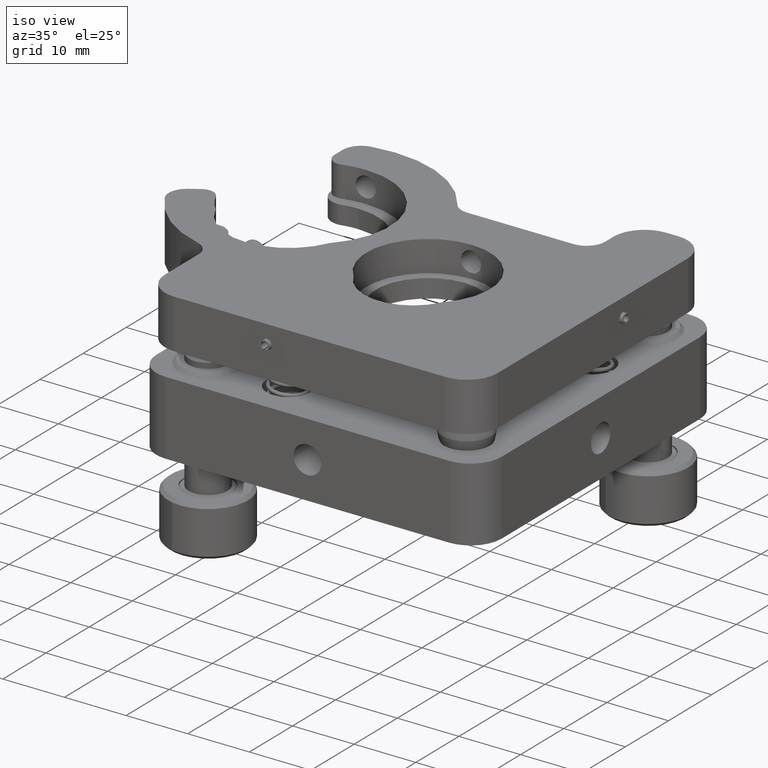
[diagram: clean part render]
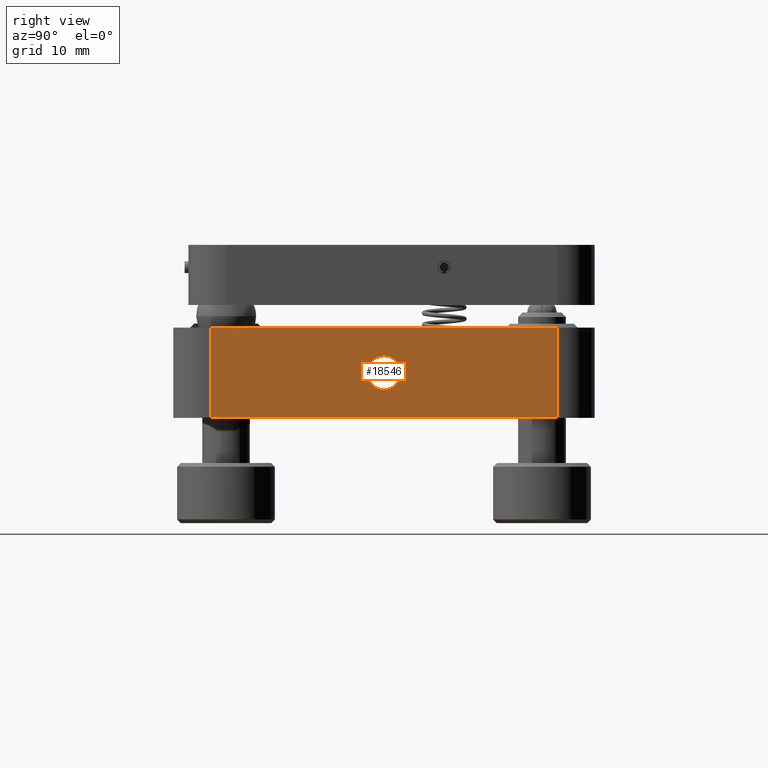
[diagram: tour spotlight — one face highlighted and labeled with its STEP entity id]
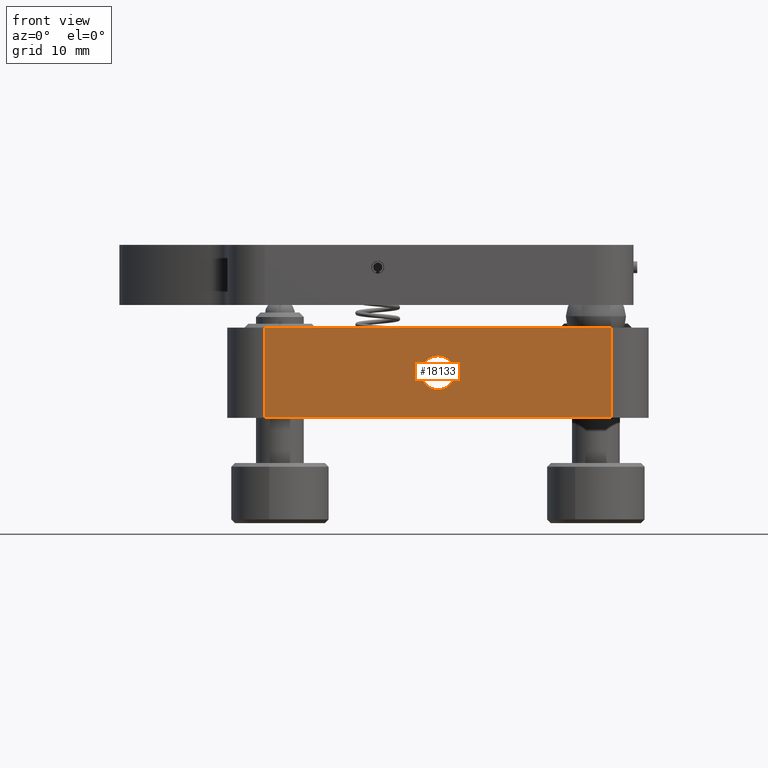
[diagram: tour spotlight — one face highlighted and labeled with its STEP entity id]
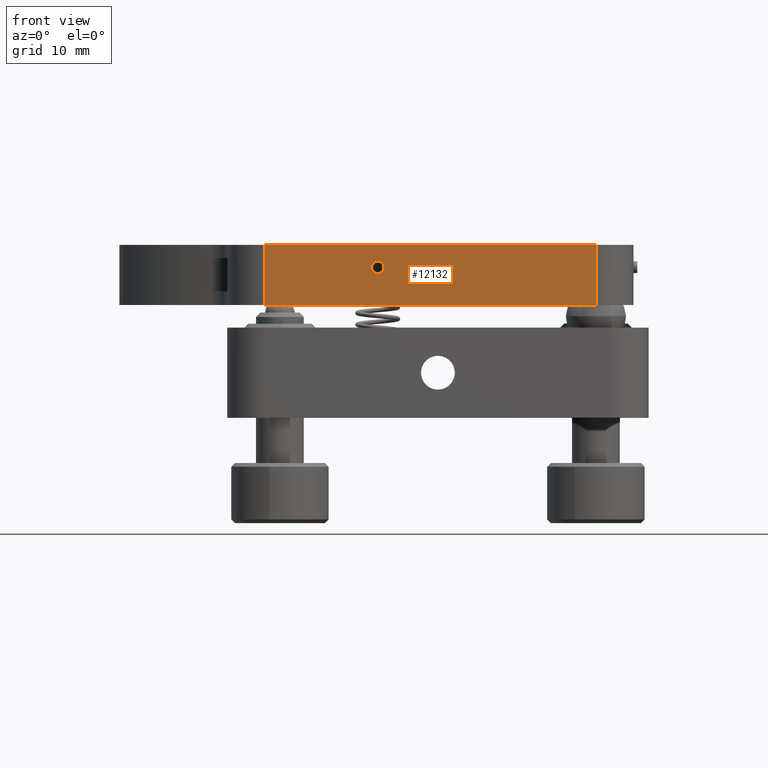
[diagram: tour spotlight — one face highlighted and labeled with its STEP entity id]
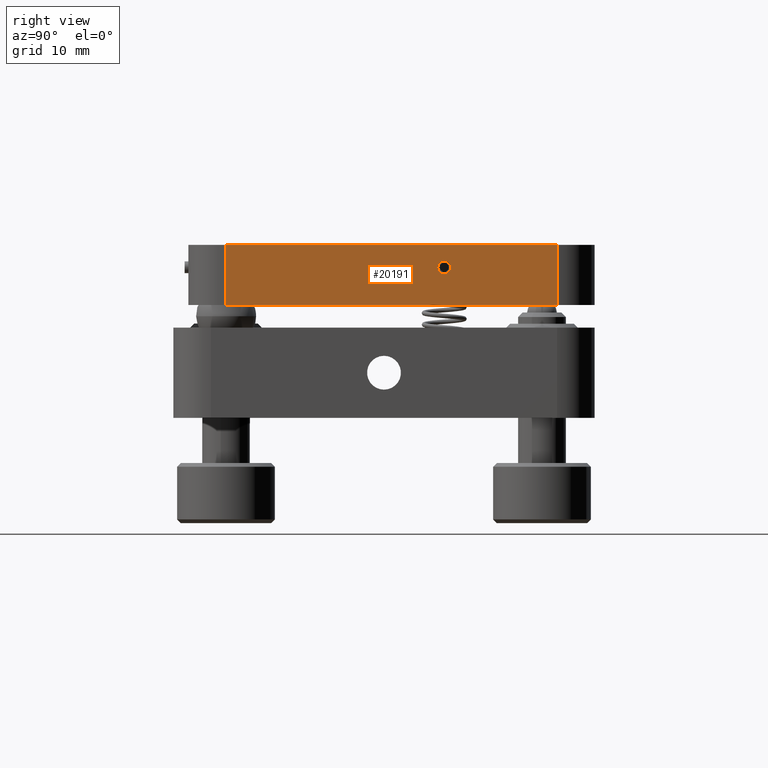
[diagram: tour spotlight — one face highlighted and labeled with its STEP entity id]
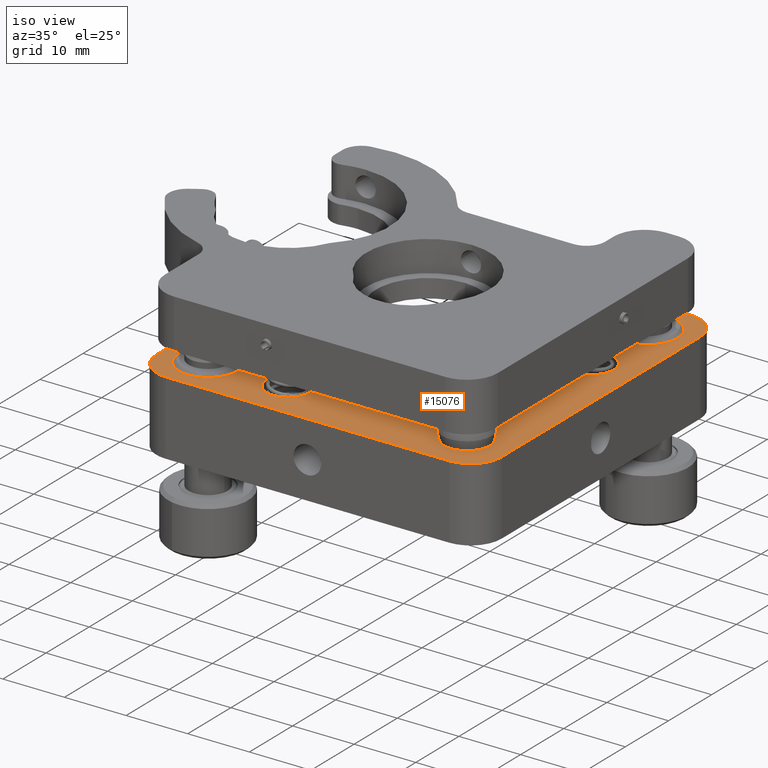
[diagram: tour spotlight — one face highlighted and labeled with its STEP entity id]
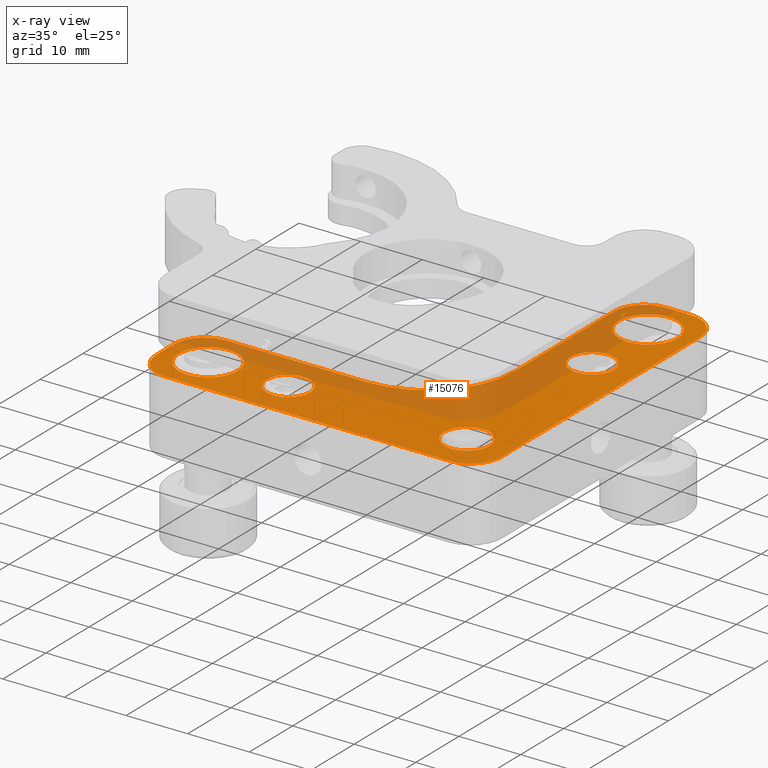
[diagram: x-ray of the same camera — body ghosted, this tour face saturated]
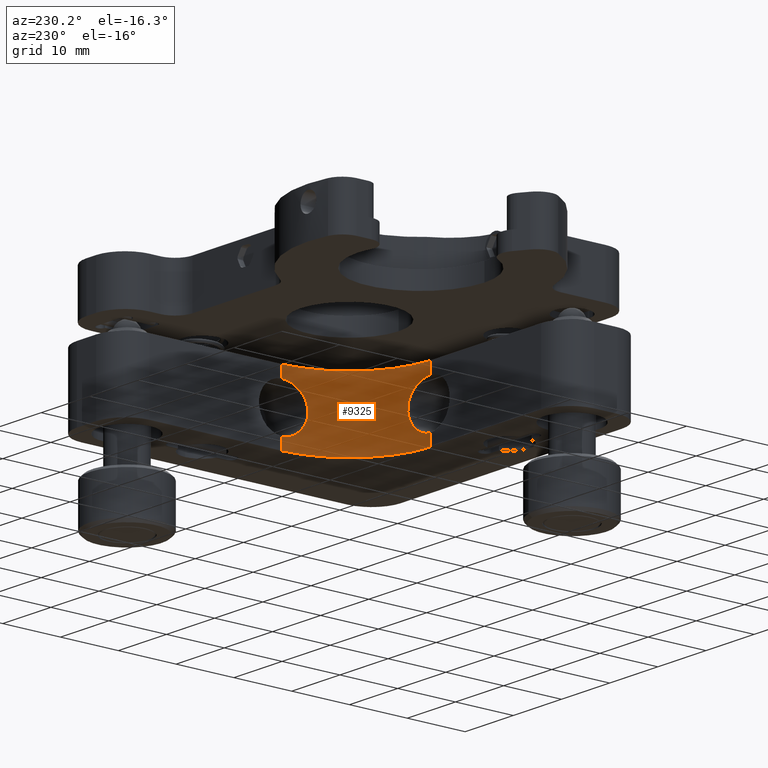
[diagram: tour spotlight — one face highlighted and labeled with its STEP entity id]
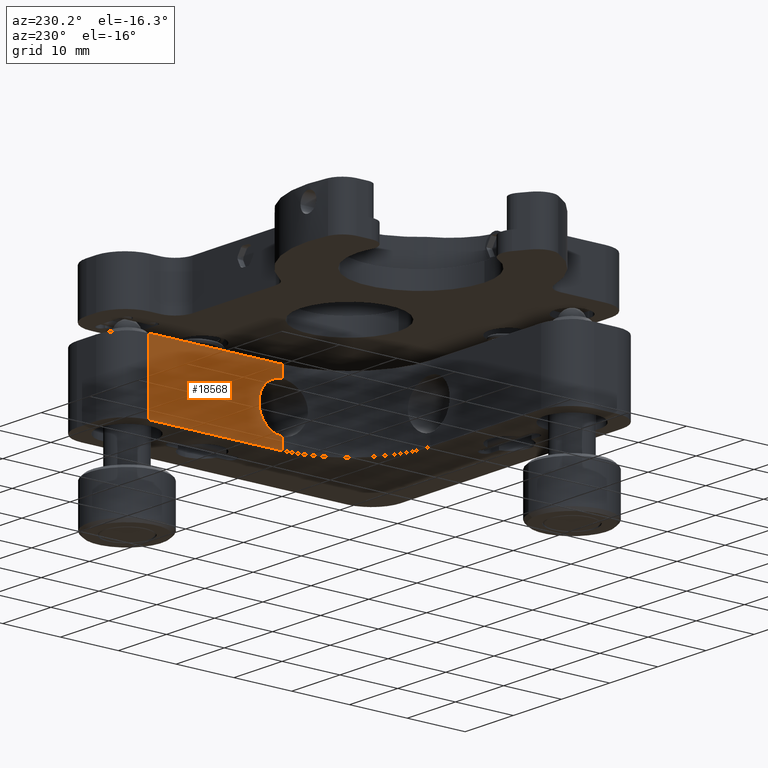
[diagram: tour spotlight — one face highlighted and labeled with its STEP entity id]
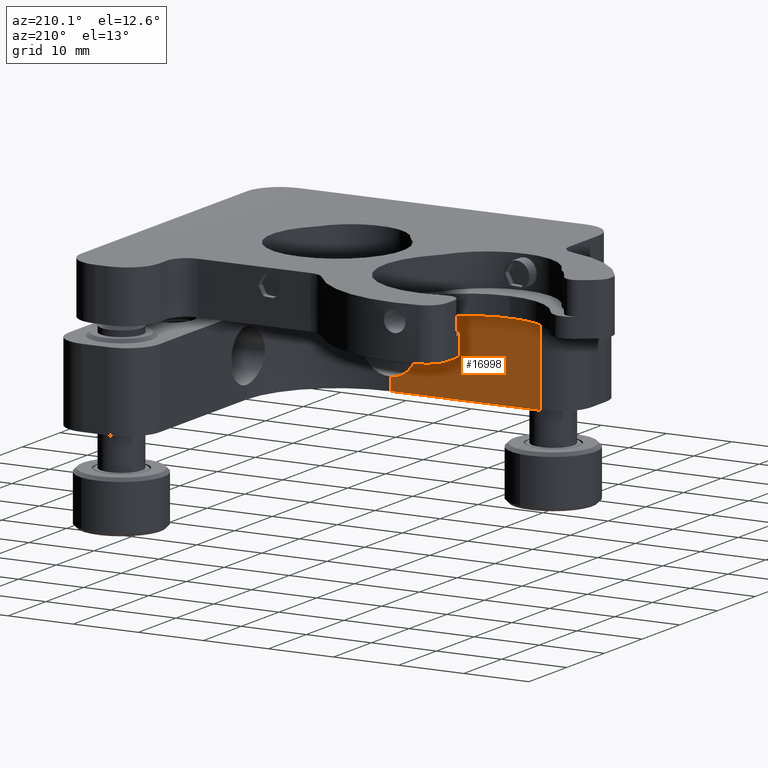
[diagram: tour spotlight — one face highlighted and labeled with its STEP entity id]
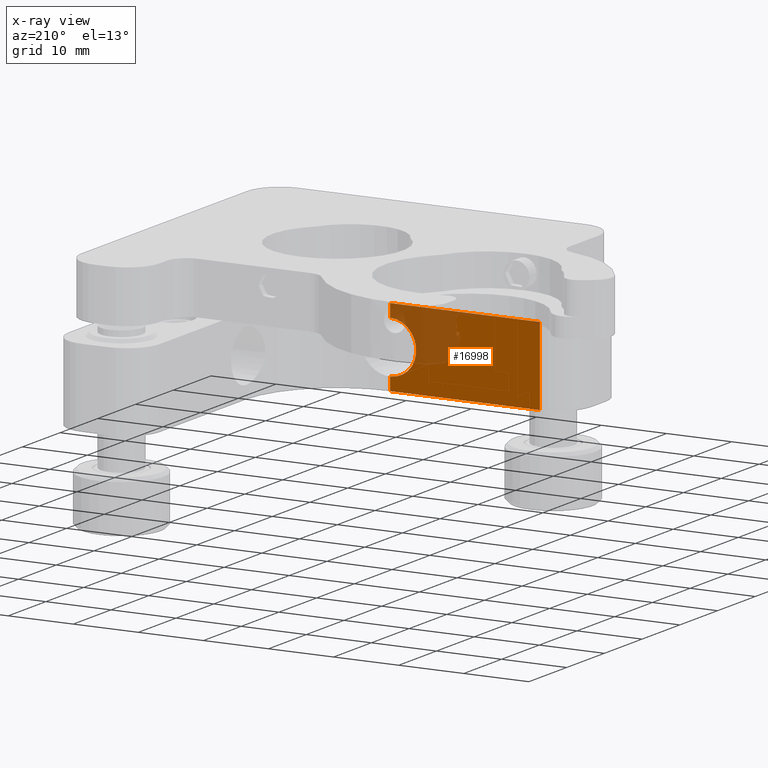
[diagram: x-ray of the same camera — body ghosted, this tour face saturated]
A machine part: a face-by-face anatomy tour. The part has 600 B-rep faces; the first image is the clean iso view, then the 8 largest visible faces are spotlighted one at a time (largest first), each with its STEP entity span.

Face 1 — right view, entity #18546. In plain terms, the highlighted planar face has unit normal (1, 0, -0).
Definition (entity closure, byte-faithful):
#39 = DIRECTION ( 'NONE',  ( 1.000000000000000000, 1.508455196501573400E-016, -0.0000000000000000000 ) ) ;
#615 = CARTESIAN_POINT ( 'NONE',  ( 27.99999999999967700, 23.00000000000001100, -3.000000000000070200 ) ) ;
#632 = DIRECTION ( 'NONE',  ( 0.0000000000000000000, 0.0000000000000000000, 1.000000000000000000 ) ) ;
#1010 = DIRECTION ( 'NONE',  ( -1.508455196501573600E-016, 1.000000000000000000, -0.0000000000000000000 ) ) ;
#1692 = EDGE_CURVE ( 'NONE', #6099, #15021, #3550, .T. ) ;
#1874 = LINE ( 'NONE', #9945, #5779 ) ;
#2280 = DIRECTION ( 'NONE',  ( 0.0000000000000000000, 0.0000000000000000000, 1.000000000000000000 ) ) ;
#2324 = ORIENTED_EDGE ( 'NONE', *, *, #18818, .T. ) ;
#2500 = VERTEX_POINT ( 'NONE', #13520 ) ;
#2515 = AXIS2_PLACEMENT_3D ( 'NONE', #3168, #39, #6278 ) ;
#2725 = CARTESIAN_POINT ( 'NONE',  ( 27.99999999999968000, 4.022839558589899200E-014, -6.750000000000071900 ) ) ;
#2954 = VERTEX_POINT ( 'NONE', #6585 ) ;
#3039 = EDGE_LOOP ( 'NONE', ( #17148, #6243, #5792, #2324 ) ) ;
#3168 = CARTESIAN_POINT ( 'NONE',  ( 27.99999999999967700, 23.00000000000000700, -15.00000000000007100 ) ) ;
#3550 = LINE ( 'NONE', #6675, #5742 ) ;
#3971 = DIRECTION ( 'NONE',  ( 0.0000000000000000000, 1.000000000000000000, 0.0000000000000000000 ) ) ;
#4229 = DIRECTION ( 'NONE',  ( 1.000000000000000000, 1.508455196501573400E-016, -0.0000000000000000000 ) ) ;
#4755 = VERTEX_POINT ( 'NONE', #2725 ) ;
#4815 = EDGE_CURVE ( 'NONE', #4755, #5611, #9571, .T. ) ;
#5513 = AXIS2_PLACEMENT_3D ( 'NONE', #19844, #4229, #3971 ) ;
#5611 = VERTEX_POINT ( 'NONE', #10009 ) ;
#5676 = EDGE_CURVE ( 'NONE', #5611, #4755, #10540, .T. ) ;
#5742 = VECTOR ( 'NONE', #13088, 1000.000000000000000 ) ;
#5779 = VECTOR ( 'NONE', #632, 1000.000000000000000 ) ;
#5792 = ORIENTED_EDGE ( 'NONE', *, *, #16968, .T. ) ;
#6099 = VERTEX_POINT ( 'NONE', #19139 ) ;
#6243 = ORIENTED_EDGE ( 'NONE', *, *, #14221, .F. ) ;
#6278 = DIRECTION ( 'NONE',  ( -1.508455196501573400E-016, 1.000000000000000000, 0.0000000000000000000 ) ) ;
#6585 = CARTESIAN_POINT ( 'NONE',  ( 27.99999999999967700, 23.00000000000001100, -15.00000000000007100 ) ) ;
#6675 = CARTESIAN_POINT ( 'NONE',  ( 27.99999999999967700, 23.00000000000000700, -3.000000000000070200 ) ) ;
#7784 = EDGE_LOOP ( 'NONE', ( #14504, #9137 ) ) ;
#7846 = PLANE ( 'NONE',  #2515 ) ;
#8222 = FACE_BOUND ( 'NONE', #7784, .T. ) ;
#9137 = ORIENTED_EDGE ( 'NONE', *, *, #4815, .F. ) ;
#9159 = DIRECTION ( 'NONE',  ( 1.000000000000000000, 1.508455196501573400E-016, -0.0000000000000000000 ) ) ;
#9571 = CIRCLE ( 'NONE', #13595, 2.249999999999999100 ) ;
#9945 = CARTESIAN_POINT ( 'NONE',  ( 27.99999999999967700, 23.00000000000001100, -15.00000000000007100 ) ) ;
#10009 = CARTESIAN_POINT ( 'NONE',  ( 27.99999999999968000, 3.995285005609083800E-014, -11.25000000000006900 ) ) ;
#10540 = CIRCLE ( 'NONE', #5513, 2.249999999999999100 ) ;
#10645 = CARTESIAN_POINT ( 'NONE',  ( 27.99999999999968000, 3.995285005609083800E-014, -9.000000000000071100 ) ) ;
#10718 = DIRECTION ( 'NONE',  ( 0.0000000000000000000, 1.000000000000000000, 0.0000000000000000000 ) ) ;
#10895 = LINE ( 'NONE', #18144, #13342 ) ;
#11572 = CARTESIAN_POINT ( 'NONE',  ( 27.99999999999968400, -22.99999999999991800, -15.00000000000007100 ) ) ;
#11637 = VECTOR ( 'NONE', #2280, 1000.000000000000000 ) ;
#13088 = DIRECTION ( 'NONE',  ( -1.508455196501573600E-016, 1.000000000000000000, -0.0000000000000000000 ) ) ;
#13342 = VECTOR ( 'NONE', #1010, 1000.000000000000000 ) ;
#13520 = CARTESIAN_POINT ( 'NONE',  ( 27.99999999999968400, -22.99999999999991800, -15.00000000000007100 ) ) ;
#13595 = AXIS2_PLACEMENT_3D ( 'NONE', #10645, #9159, #10718 ) ;
#14221 = EDGE_CURVE ( 'NONE', #2500, #6099, #14340, .T. ) ;
#14340 = LINE ( 'NONE', #11572, #11637 ) ;
#14504 = ORIENTED_EDGE ( 'NONE', *, *, #5676, .F. ) ;
#15021 = VERTEX_POINT ( 'NONE', #615 ) ;
#16968 = EDGE_CURVE ( 'NONE', #2500, #2954, #10895, .T. ) ;
#17148 = ORIENTED_EDGE ( 'NONE', *, *, #1692, .F. ) ;
#18144 = CARTESIAN_POINT ( 'NONE',  ( 27.99999999999967700, 23.00000000000000700, -15.00000000000007100 ) ) ;
#18223 = FACE_OUTER_BOUND ( 'NONE', #3039, .T. ) ;
#18546 = ADVANCED_FACE ( 'NONE', ( #8222, #18223 ), #7846, .T. ) ;
#18818 = EDGE_CURVE ( 'NONE', #2954, #15021, #1874, .T. ) ;
#19139 = CARTESIAN_POINT ( 'NONE',  ( 27.99999999999968400, -22.99999999999991800, -3.000000000000070200 ) ) ;
#19844 = CARTESIAN_POINT ( 'NONE',  ( 27.99999999999968000, 3.995285005609083800E-014, -9.000000000000071100 ) ) ;

Face 2 — front view, entity #18133. In plain terms, the highlighted planar face has unit normal (0, -1, 0).
Definition (entity closure, byte-faithful):
#566 = EDGE_CURVE ( 'NONE', #11337, #13556, #1611, .T. ) ;
#587 = DIRECTION ( 'NONE',  ( 1.000000000000000000, 7.542275982507867000E-017, 0.0000000000000000000 ) ) ;
#693 = VECTOR ( 'NONE', #3702, 1000.000000000000000 ) ;
#1292 = CARTESIAN_POINT ( 'NONE',  ( -3.273557551521980000E-013, -27.99999999999995400, -9.000000000000071100 ) ) ;
#1611 = LINE ( 'NONE', #6559, #13770 ) ;
#2001 = ORIENTED_EDGE ( 'NONE', *, *, #17842, .T. ) ;
#2018 = LINE ( 'NONE', #14256, #12944 ) ;
#2737 = EDGE_CURVE ( 'NONE', #14989, #5489, #2018, .T. ) ;
#3444 = CARTESIAN_POINT ( 'NONE',  ( 22.99999999999964500, -27.99999999999995400, -15.00000000000007100 ) ) ;
#3702 = DIRECTION ( 'NONE',  ( 0.0000000000000000000, 0.0000000000000000000, 1.000000000000000000 ) ) ;
#3705 = ORIENTED_EDGE ( 'NONE', *, *, #2737, .F. ) ;
#3851 = VERTEX_POINT ( 'NONE', #16289 ) ;
#4809 = CIRCLE ( 'NONE', #19467, 2.249999999999999600 ) ;
#4931 = CARTESIAN_POINT ( 'NONE',  ( 22.99999999999964500, -27.99999999999995400, -3.000000000000070200 ) ) ;
#5329 = LINE ( 'NONE', #19180, #12621 ) ;
#5489 = VERTEX_POINT ( 'NONE', #4931 ) ;
#6511 = EDGE_LOOP ( 'NONE', ( #17947, #2001 ) ) ;
#6559 = CARTESIAN_POINT ( 'NONE',  ( -23.00000000000028100, -27.99999999999995700, -15.00000000000007100 ) ) ;
#6750 = EDGE_CURVE ( 'NONE', #13556, #5489, #19468, .T. ) ;
#7154 = CARTESIAN_POINT ( 'NONE',  ( -23.00000000000028100, -27.99999999999995700, -15.00000000000007100 ) ) ;
#7517 = CARTESIAN_POINT ( 'NONE',  ( 22.99999999999964500, -27.99999999999995400, -15.00000000000007100 ) ) ;
#7542 = DIRECTION ( 'NONE',  ( 1.000000000000000000, 0.0000000000000000000, 0.0000000000000000000 ) ) ;
#8014 = DIRECTION ( 'NONE',  ( 1.000000000000000000, 7.542275982507868200E-017, 0.0000000000000000000 ) ) ;
#8288 = DIRECTION ( 'NONE',  ( 1.000000000000000000, 7.542275982507868200E-017, 0.0000000000000000000 ) ) ;
#8943 = FACE_OUTER_BOUND ( 'NONE', #19033, .T. ) ;
#9052 = DIRECTION ( 'NONE',  ( -7.542275982507867000E-017, 1.000000000000000000, -0.0000000000000000000 ) ) ;
#9262 = DIRECTION ( 'NONE',  ( 1.000000000000000000, 0.0000000000000000000, 0.0000000000000000000 ) ) ;
#10548 = AXIS2_PLACEMENT_3D ( 'NONE', #11399, #19332, #587 ) ;
#11337 = VERTEX_POINT ( 'NONE', #7154 ) ;
#11399 = CARTESIAN_POINT ( 'NONE',  ( -23.00000000000028100, -27.99999999999995700, -15.00000000000007100 ) ) ;
#12621 = VECTOR ( 'NONE', #14648, 1000.000000000000000 ) ;
#12944 = VECTOR ( 'NONE', #8014, 1000.000000000000000 ) ;
#13535 = VERTEX_POINT ( 'NONE', #18573 ) ;
#13556 = VERTEX_POINT ( 'NONE', #7517 ) ;
#13770 = VECTOR ( 'NONE', #8288, 1000.000000000000000 ) ;
#13981 = CARTESIAN_POINT ( 'NONE',  ( -3.273557551521980000E-013, -27.99999999999995400, -9.000000000000071100 ) ) ;
#14067 = CIRCLE ( 'NONE', #14722, 2.249999999999999600 ) ;
#14169 = EDGE_CURVE ( 'NONE', #11337, #14989, #5329, .T. ) ;
#14256 = CARTESIAN_POINT ( 'NONE',  ( -23.00000000000028100, -27.99999999999995700, -3.000000000000070200 ) ) ;
#14471 = ORIENTED_EDGE ( 'NONE', *, *, #566, .T. ) ;
#14557 = ORIENTED_EDGE ( 'NONE', *, *, #6750, .T. ) ;
#14648 = DIRECTION ( 'NONE',  ( 0.0000000000000000000, 0.0000000000000000000, 1.000000000000000000 ) ) ;
#14722 = AXIS2_PLACEMENT_3D ( 'NONE', #13981, #20023, #9262 ) ;
#14989 = VERTEX_POINT ( 'NONE', #17907 ) ;
#16289 = CARTESIAN_POINT ( 'NONE',  ( -3.273557551521980000E-013, -27.99999999999995400, -11.25000000000006900 ) ) ;
#17151 = ORIENTED_EDGE ( 'NONE', *, *, #14169, .F. ) ;
#17815 = EDGE_CURVE ( 'NONE', #3851, #13535, #4809, .T. ) ;
#17842 = EDGE_CURVE ( 'NONE', #13535, #3851, #14067, .T. ) ;
#17907 = CARTESIAN_POINT ( 'NONE',  ( -23.00000000000028100, -27.99999999999995700, -3.000000000000070200 ) ) ;
#17947 = ORIENTED_EDGE ( 'NONE', *, *, #17815, .T. ) ;
#18133 = ADVANCED_FACE ( 'NONE', ( #8943, #18734 ), #19267, .T. ) ;
#18573 = CARTESIAN_POINT ( 'NONE',  ( -3.270802096223898300E-013, -27.99999999999995400, -6.750000000000071100 ) ) ;
#18734 = FACE_BOUND ( 'NONE', #6511, .T. ) ;
#19033 = EDGE_LOOP ( 'NONE', ( #3705, #17151, #14471, #14557 ) ) ;
#19180 = CARTESIAN_POINT ( 'NONE',  ( -23.00000000000028100, -27.99999999999995700, -15.00000000000007100 ) ) ;
#19267 = PLANE ( 'NONE',  #10548 ) ;
#19332 = DIRECTION ( 'NONE',  ( 7.542275982507867000E-017, -1.000000000000000000, 0.0000000000000000000 ) ) ;
#19467 = AXIS2_PLACEMENT_3D ( 'NONE', #1292, #9052, #7542 ) ;
#19468 = LINE ( 'NONE', #3444, #693 ) ;
#20023 = DIRECTION ( 'NONE',  ( -7.542275982507867000E-017, 1.000000000000000000, -0.0000000000000000000 ) ) ;

Face 3 — front view, entity #12132. In plain terms, the highlighted planar face has unit normal (-0, -1, 0).
Definition (entity closure, byte-faithful):
#117 = CARTESIAN_POINT ( 'NONE',  ( 20.99999999999998200, -26.00000000000000000, -0.0000000000000000000 ) ) ;
#166 = AXIS2_PLACEMENT_3D ( 'NONE', #10505, #15419, #6092 ) ;
#201 = CIRCLE ( 'NONE', #9204, 0.8500000000000139700 ) ;
#212 = CARTESIAN_POINT ( 'NONE',  ( 20.99999999999998200, -26.00000000000000000, 8.000000000000000000 ) ) ;
#603 = ORIENTED_EDGE ( 'NONE', *, *, #10096, .T. ) ;
#954 = VERTEX_POINT ( 'NONE', #1541 ) ;
#975 = DIRECTION ( 'NONE',  ( -1.000000000000000000, 2.220446049250312600E-016, 0.0000000000000000000 ) ) ;
#993 = CARTESIAN_POINT ( 'NONE',  ( -23.00000000000000400, -25.99999999999999300, 8.000000000000000000 ) ) ;
#1016 = CARTESIAN_POINT ( 'NONE',  ( 20.99999999999998200, -26.00000000000000000, -0.0000000000000000000 ) ) ;
#1281 = VERTEX_POINT ( 'NONE', #993 ) ;
#1541 = CARTESIAN_POINT ( 'NONE',  ( 20.99999999999998200, -26.00000000000000000, 8.000000000000000000 ) ) ;
#1697 = AXIS2_PLACEMENT_3D ( 'NONE', #8518, #5169, #2200 ) ;
#1838 = ORIENTED_EDGE ( 'NONE', *, *, #7407, .F. ) ;
#1992 = FACE_BOUND ( 'NONE', #5823, .T. ) ;
#2200 = DIRECTION ( 'NONE',  ( -1.000000000000000000, 0.0000000000000000000, 0.0000000000000000000 ) ) ;
#4201 = CARTESIAN_POINT ( 'NONE',  ( -8.850000000000019200, -25.99999999999999300, 5.000000000000000000 ) ) ;
#4304 = EDGE_LOOP ( 'NONE', ( #16496, #8641, #603, #18943 ) ) ;
#5169 = DIRECTION ( 'NONE',  ( -2.220446049250312600E-016, -1.000000000000000000, 0.0000000000000000000 ) ) ;
#5333 = CARTESIAN_POINT ( 'NONE',  ( -8.000000000000005300, -25.99999999999999300, 5.000000000000000000 ) ) ;
#5823 = EDGE_LOOP ( 'NONE', ( #1838, #17388 ) ) ;
#6092 = DIRECTION ( 'NONE',  ( -1.000000000000000000, 2.220446049250312600E-016, 0.0000000000000000000 ) ) ;
#6821 = EDGE_CURVE ( 'NONE', #11608, #19631, #201, .T. ) ;
#7250 = CIRCLE ( 'NONE', #1697, 0.8500000000000139700 ) ;
#7407 = EDGE_CURVE ( 'NONE', #19631, #11608, #7250, .T. ) ;
#7761 = CARTESIAN_POINT ( 'NONE',  ( -23.00000000000000400, -25.99999999999999300, 0.0000000000000000000 ) ) ;
#8518 = CARTESIAN_POINT ( 'NONE',  ( -8.000000000000005300, -25.99999999999999300, 5.000000000000000000 ) ) ;
#8641 = ORIENTED_EDGE ( 'NONE', *, *, #13135, .F. ) ;
#9056 = FACE_OUTER_BOUND ( 'NONE', #4304, .T. ) ;
#9204 = AXIS2_PLACEMENT_3D ( 'NONE', #5333, #16297, #19465 ) ;
#9881 = VERTEX_POINT ( 'NONE', #7761 ) ;
#10096 = EDGE_CURVE ( 'NONE', #954, #1281, #16657, .T. ) ;
#10253 = CARTESIAN_POINT ( 'NONE',  ( 20.99999999999998200, -26.00000000000000000, 8.000000000000000000 ) ) ;
#10505 = CARTESIAN_POINT ( 'NONE',  ( 20.99999999999998200, -26.00000000000000000, 8.000000000000000000 ) ) ;
#10987 = EDGE_CURVE ( 'NONE', #1281, #9881, #12239, .T. ) ;
#11608 = VERTEX_POINT ( 'NONE', #13937 ) ;
#11872 = DIRECTION ( 'NONE',  ( -1.000000000000000000, 2.220446049250312600E-016, 0.0000000000000000000 ) ) ;
#11977 = EDGE_CURVE ( 'NONE', #17971, #9881, #19561, .T. ) ;
#12132 = ADVANCED_FACE ( 'NONE', ( #1992, #9056 ), #18428, .T. ) ;
#12239 = LINE ( 'NONE', #16776, #14181 ) ;
#13135 = EDGE_CURVE ( 'NONE', #954, #17971, #15617, .T. ) ;
#13937 = CARTESIAN_POINT ( 'NONE',  ( -7.149999999999991500, -25.99999999999999300, 5.000000000000000000 ) ) ;
#14181 = VECTOR ( 'NONE', #20195, 1000.000000000000000 ) ;
#14446 = VECTOR ( 'NONE', #975, 1000.000000000000000 ) ;
#15419 = DIRECTION ( 'NONE',  ( -2.220446049250312600E-016, -1.000000000000000000, 0.0000000000000000000 ) ) ;
#15617 = LINE ( 'NONE', #212, #18295 ) ;
#16297 = DIRECTION ( 'NONE',  ( -2.220446049250312600E-016, -1.000000000000000000, 0.0000000000000000000 ) ) ;
#16496 = ORIENTED_EDGE ( 'NONE', *, *, #11977, .F. ) ;
#16657 = LINE ( 'NONE', #10253, #14446 ) ;
#16776 = CARTESIAN_POINT ( 'NONE',  ( -23.00000000000000400, -25.99999999999999300, 8.000000000000000000 ) ) ;
#17388 = ORIENTED_EDGE ( 'NONE', *, *, #6821, .F. ) ;
#17971 = VERTEX_POINT ( 'NONE', #117 ) ;
#18295 = VECTOR ( 'NONE', #18752, 1000.000000000000000 ) ;
#18428 = PLANE ( 'NONE',  #166 ) ;
#18752 = DIRECTION ( 'NONE',  ( 0.0000000000000000000, 0.0000000000000000000, -1.000000000000000000 ) ) ;
#18943 = ORIENTED_EDGE ( 'NONE', *, *, #10987, .T. ) ;
#19465 = DIRECTION ( 'NONE',  ( -1.000000000000000000, 0.0000000000000000000, 0.0000000000000000000 ) ) ;
#19561 = LINE ( 'NONE', #1016, #20044 ) ;
#19631 = VERTEX_POINT ( 'NONE', #4201 ) ;
#20044 = VECTOR ( 'NONE', #11872, 1000.000000000000000 ) ;
#20195 = DIRECTION ( 'NONE',  ( 0.0000000000000000000, 0.0000000000000000000, -1.000000000000000000 ) ) ;

Face 4 — right view, entity #20191. In plain terms, the highlighted planar face has unit normal (1, -0, -0).
Definition (entity closure, byte-faithful):
#144 = ORIENTED_EDGE ( 'NONE', *, *, #1781, .F. ) ;
#377 = VECTOR ( 'NONE', #11734, 1000.000000000000000 ) ;
#847 = ORIENTED_EDGE ( 'NONE', *, *, #15944, .T. ) ;
#1731 = AXIS2_PLACEMENT_3D ( 'NONE', #4889, #17007, #20147 ) ;
#1781 = EDGE_CURVE ( 'NONE', #14258, #13740, #14101, .T. ) ;
#2731 = ORIENTED_EDGE ( 'NONE', *, *, #13229, .F. ) ;
#3538 = LINE ( 'NONE', #14881, #377 ) ;
#4233 = DIRECTION ( 'NONE',  ( 1.000000000000000000, -2.220446049250312600E-016, -0.0000000000000000000 ) ) ;
#4889 = CARTESIAN_POINT ( 'NONE',  ( 26.00000000000000000, 7.999999999999994700, 5.000000000000000000 ) ) ;
#5271 = CARTESIAN_POINT ( 'NONE',  ( 26.00000000000000000, 22.99999999999998900, 8.000000000000000000 ) ) ;
#5549 = DIRECTION ( 'NONE',  ( -2.220446049250312600E-016, -1.000000000000000000, 0.0000000000000000000 ) ) ;
#7031 = CARTESIAN_POINT ( 'NONE',  ( 26.00000000000000000, 7.999999999999994700, 5.000000000000000000 ) ) ;
#7064 = LINE ( 'NONE', #19329, #11915 ) ;
#7097 = DIRECTION ( 'NONE',  ( 0.0000000000000000000, -1.000000000000000000, 0.0000000000000000000 ) ) ;
#7173 = FACE_BOUND ( 'NONE', #8245, .T. ) ;
#7555 = CARTESIAN_POINT ( 'NONE',  ( 26.00000000000000000, 22.99999999999998900, 0.0000000000000000000 ) ) ;
#8245 = EDGE_LOOP ( 'NONE', ( #8607, #144 ) ) ;
#8280 = LINE ( 'NONE', #5271, #15601 ) ;
#8593 = DIRECTION ( 'NONE',  ( 1.000000000000000000, -2.220446049250312600E-016, -0.0000000000000000000 ) ) ;
#8607 = ORIENTED_EDGE ( 'NONE', *, *, #10390, .F. ) ;
#9107 = CIRCLE ( 'NONE', #1731, 0.8500000000000130800 ) ;
#9295 = CARTESIAN_POINT ( 'NONE',  ( 25.99999999999999300, -21.00000000000000000, -0.0000000000000000000 ) ) ;
#9584 = AXIS2_PLACEMENT_3D ( 'NONE', #16411, #4233, #18076 ) ;
#9708 = VERTEX_POINT ( 'NONE', #7555 ) ;
#10390 = EDGE_CURVE ( 'NONE', #13740, #14258, #9107, .T. ) ;
#11184 = VECTOR ( 'NONE', #14344, 1000.000000000000000 ) ;
#11734 = DIRECTION ( 'NONE',  ( 0.0000000000000000000, 0.0000000000000000000, -1.000000000000000000 ) ) ;
#11915 = VECTOR ( 'NONE', #13215, 1000.000000000000000 ) ;
#12164 = VERTEX_POINT ( 'NONE', #13762 ) ;
#12567 = AXIS2_PLACEMENT_3D ( 'NONE', #7031, #8593, #7097 ) ;
#12584 = CARTESIAN_POINT ( 'NONE',  ( 26.00000000000000000, 22.99999999999998900, 0.0000000000000000000 ) ) ;
#13215 = DIRECTION ( 'NONE',  ( 0.0000000000000000000, 0.0000000000000000000, -1.000000000000000000 ) ) ;
#13229 = EDGE_CURVE ( 'NONE', #9708, #16222, #18272, .T. ) ;
#13551 = PLANE ( 'NONE',  #9584 ) ;
#13740 = VERTEX_POINT ( 'NONE', #17081 ) ;
#13762 = CARTESIAN_POINT ( 'NONE',  ( 26.00000000000000000, 22.99999999999998900, 8.000000000000000000 ) ) ;
#14101 = CIRCLE ( 'NONE', #12567, 0.8500000000000130800 ) ;
#14258 = VERTEX_POINT ( 'NONE', #14780 ) ;
#14344 = DIRECTION ( 'NONE',  ( -2.220446049250312600E-016, -1.000000000000000000, 0.0000000000000000000 ) ) ;
#14447 = ORIENTED_EDGE ( 'NONE', *, *, #15915, .T. ) ;
#14510 = EDGE_LOOP ( 'NONE', ( #2731, #19685, #14447, #847 ) ) ;
#14780 = CARTESIAN_POINT ( 'NONE',  ( 26.00000000000000000, 8.850000000000008500, 5.000000000000000000 ) ) ;
#14881 = CARTESIAN_POINT ( 'NONE',  ( 26.00000000000000000, 22.99999999999998900, 8.000000000000000000 ) ) ;
#15601 = VECTOR ( 'NONE', #5549, 1000.000000000000000 ) ;
#15915 = EDGE_CURVE ( 'NONE', #12164, #18530, #8280, .T. ) ;
#15944 = EDGE_CURVE ( 'NONE', #18530, #16222, #7064, .T. ) ;
#16222 = VERTEX_POINT ( 'NONE', #9295 ) ;
#16411 = CARTESIAN_POINT ( 'NONE',  ( 26.00000000000000000, 22.99999999999998900, 8.000000000000000000 ) ) ;
#16663 = FACE_OUTER_BOUND ( 'NONE', #14510, .T. ) ;
#17007 = DIRECTION ( 'NONE',  ( 1.000000000000000000, -2.220446049250312600E-016, -0.0000000000000000000 ) ) ;
#17081 = CARTESIAN_POINT ( 'NONE',  ( 26.00000000000000000, 7.149999999999981700, 5.000000000000000000 ) ) ;
#18076 = DIRECTION ( 'NONE',  ( -2.220446049250312600E-016, -1.000000000000000000, 0.0000000000000000000 ) ) ;
#18272 = LINE ( 'NONE', #12584, #11184 ) ;
#18530 = VERTEX_POINT ( 'NONE', #20122 ) ;
#19329 = CARTESIAN_POINT ( 'NONE',  ( 25.99999999999999300, -21.00000000000000000, 8.000000000000000000 ) ) ;
#19505 = EDGE_CURVE ( 'NONE', #12164, #9708, #3538, .T. ) ;
#19685 = ORIENTED_EDGE ( 'NONE', *, *, #19505, .F. ) ;
#20122 = CARTESIAN_POINT ( 'NONE',  ( 25.99999999999999300, -21.00000000000000000, 8.000000000000000000 ) ) ;
#20147 = DIRECTION ( 'NONE',  ( 0.0000000000000000000, -1.000000000000000000, 0.0000000000000000000 ) ) ;
#20191 = ADVANCED_FACE ( 'NONE', ( #7173, #16663 ), #13551, .T. ) ;

Face 5 — iso view, entity #15076. An x-ray twin of the same camera follows (body ghosted, this face saturated) — the face is partly hidden behind the body. In plain terms, the highlighted planar face has unit normal (0, 0, 1).
Definition (entity closure, byte-faithful):
#183 = ORIENTED_EDGE ( 'NONE', *, *, #19835, .T. ) ;
#292 = CIRCLE ( 'NONE', #3605, 3.499999999999999600 ) ;
#347 = EDGE_LOOP ( 'NONE', ( #13530, #16307 ) ) ;
#488 = DIRECTION ( 'NONE',  ( 0.0000000000000000000, 0.0000000000000000000, 1.000000000000000000 ) ) ;
#530 = DIRECTION ( 'NONE',  ( 1.000000000000000000, 0.0000000000000000000, 0.0000000000000000000 ) ) ;
#569 = VERTEX_POINT ( 'NONE', #1894 ) ;
#615 = CARTESIAN_POINT ( 'NONE',  ( 27.99999999999967700, 23.00000000000001100, -3.000000000000070200 ) ) ;
#655 = VERTEX_POINT ( 'NONE', #14873 ) ;
#923 = CARTESIAN_POINT ( 'NONE',  ( -23.00000000000032000, -22.99999999999995700, -3.000000000000070200 ) ) ;
#935 = DIRECTION ( 'NONE',  ( 0.0000000000000000000, 0.0000000000000000000, 1.000000000000000000 ) ) ;
#1246 = VECTOR ( 'NONE', #5126, 1000.000000000000000 ) ;
#1478 = DIRECTION ( 'NONE',  ( -1.000000000000000000, -0.0000000000000000000, -0.0000000000000000000 ) ) ;
#1504 = ORIENTED_EDGE ( 'NONE', *, *, #17284, .F. ) ;
#1511 = CARTESIAN_POINT ( 'NONE',  ( 22.99999999999968400, -22.99999999999995700, -3.000000000000070200 ) ) ;
#1554 = DIRECTION ( 'NONE',  ( 0.0000000000000000000, 0.0000000000000000000, 1.000000000000000000 ) ) ;
#1572 = CARTESIAN_POINT ( 'NONE',  ( 18.99999999999970500, 28.00000000000004300, -3.000000000000070200 ) ) ;
#1681 = DIRECTION ( 'NONE',  ( 1.000000000000000000, 0.0000000000000000000, 0.0000000000000000000 ) ) ;
#1692 = EDGE_CURVE ( 'NONE', #6099, #15021, #3550, .T. ) ;
#1747 = FACE_OUTER_BOUND ( 'NONE', #16366, .T. ) ;
#1756 = VERTEX_POINT ( 'NONE', #17744 ) ;
#1894 = CARTESIAN_POINT ( 'NONE',  ( 13.99999999999967000, 23.00000000000000700, -3.000000000000070200 ) ) ;
#2018 = LINE ( 'NONE', #14256, #12944 ) ;
#2042 = DIRECTION ( 'NONE',  ( 1.000000000000000000, 0.0000000000000000000, -0.0000000000000000000 ) ) ;
#2094 = VERTEX_POINT ( 'NONE', #14063 ) ;
#2463 = ORIENTED_EDGE ( 'NONE', *, *, #12052, .T. ) ;
#2525 = EDGE_CURVE ( 'NONE', #1756, #2094, #14334, .T. ) ;
#2737 = EDGE_CURVE ( 'NONE', #14989, #5489, #2018, .T. ) ;
#2753 = AXIS2_PLACEMENT_3D ( 'NONE', #18197, #3964, #7146 ) ;
#3088 = AXIS2_PLACEMENT_3D ( 'NONE', #5104, #488, #2042 ) ;
#3475 = LINE ( 'NONE', #7712, #3975 ) ;
#3513 = EDGE_CURVE ( 'NONE', #5718, #7198, #292, .T. ) ;
#3550 = LINE ( 'NONE', #6675, #5742 ) ;
#3562 = CARTESIAN_POINT ( 'NONE',  ( -23.00000000000032000, -18.99999999999995700, -3.000000000000070200 ) ) ;
#3605 = AXIS2_PLACEMENT_3D ( 'NONE', #6095, #9304, #7647 ) ;
#3964 = DIRECTION ( 'NONE',  ( 0.0000000000000000000, 0.0000000000000000000, 1.000000000000000000 ) ) ;
#3975 = VECTOR ( 'NONE', #1478, 1000.000000000000000 ) ;
#4046 = VERTEX_POINT ( 'NONE', #17556 ) ;
#4148 = AXIS2_PLACEMENT_3D ( 'NONE', #8131, #19064, #530 ) ;
#4453 = CARTESIAN_POINT ( 'NONE',  ( 18.99999999999967000, 23.00000000000004300, -3.000000000000070200 ) ) ;
#4473 = ORIENTED_EDGE ( 'NONE', *, *, #15717, .F. ) ;
#4591 = ORIENTED_EDGE ( 'NONE', *, *, #19321, .T. ) ;
#4604 = CARTESIAN_POINT ( 'NONE',  ( 22.99999999999968000, 23.00000000000004300, -3.000000000000070200 ) ) ;
#4635 = DIRECTION ( 'NONE',  ( 1.000000000000000000, 0.0000000000000000000, 0.0000000000000000000 ) ) ;
#4859 = CIRCLE ( 'NONE', #9244, 4.750000000000000900 ) ;
#4931 = CARTESIAN_POINT ( 'NONE',  ( 22.99999999999964500, -27.99999999999995400, -3.000000000000070200 ) ) ;
#5093 = CIRCLE ( 'NONE', #11847, 4.999999999999997300 ) ;
#5104 = CARTESIAN_POINT ( 'NONE',  ( -3.273557551521980000E-013, 3.995285005609083800E-014, -3.000000000000070200 ) ) ;
#5126 = DIRECTION ( 'NONE',  ( 0.0000000000000000000, -1.000000000000000000, 0.0000000000000000000 ) ) ;
#5365 = LINE ( 'NONE', #12936, #1246 ) ;
#5489 = VERTEX_POINT ( 'NONE', #4931 ) ;
#5718 = VERTEX_POINT ( 'NONE', #13475 ) ;
#5742 = VECTOR ( 'NONE', #13088, 1000.000000000000000 ) ;
#5771 = EDGE_LOOP ( 'NONE', ( #1504, #16246 ) ) ;
#5871 = FACE_BOUND ( 'NONE', #9914, .T. ) ;
#5888 = CIRCLE ( 'NONE', #18225, 3.499999999999999600 ) ;
#6071 = ORIENTED_EDGE ( 'NONE', *, *, #15640, .F. ) ;
#6079 = VERTEX_POINT ( 'NONE', #6435 ) ;
#6095 = CARTESIAN_POINT ( 'NONE',  ( 20.99999999999968000, 8.000000000000040900, -3.000000000000070200 ) ) ;
#6099 = VERTEX_POINT ( 'NONE', #19139 ) ;
#6137 = DIRECTION ( 'NONE',  ( -1.000000000000000000, 0.0000000000000000000, 0.0000000000000000000 ) ) ;
#6238 = ORIENTED_EDGE ( 'NONE', *, *, #12314, .F. ) ;
#6393 = CARTESIAN_POINT ( 'NONE',  ( -21.00000000000031600, -20.99999999999996400, -3.000000000000070200 ) ) ;
#6435 = CARTESIAN_POINT ( 'NONE',  ( 25.74999999999968000, 21.00000000000004300, -3.000000000000070200 ) ) ;
#6471 = VERTEX_POINT ( 'NONE', #16997 ) ;
#6675 = CARTESIAN_POINT ( 'NONE',  ( 27.99999999999967700, 23.00000000000000700, -3.000000000000070200 ) ) ;
#6755 = CARTESIAN_POINT ( 'NONE',  ( -3.273557551521980000E-013, -13.99999999999996100, -3.000000000000070200 ) ) ;
#6850 = DIRECTION ( 'NONE',  ( 0.0000000000000000000, 0.0000000000000000000, 1.000000000000000000 ) ) ;
#6907 = DIRECTION ( 'NONE',  ( 1.000000000000000000, 0.0000000000000000000, 0.0000000000000000000 ) ) ;
#6988 = CARTESIAN_POINT ( 'NONE',  ( 18.99999999999970500, 28.00000000000004300, -3.000000000000070200 ) ) ;
#6989 = VERTEX_POINT ( 'NONE', #10489 ) ;
#7139 = CARTESIAN_POINT ( 'NONE',  ( -16.25000000000031600, -20.99999999999996400, -3.000000000000070200 ) ) ;
#7146 = DIRECTION ( 'NONE',  ( 1.000000000000000000, 0.0000000000000000000, 0.0000000000000000000 ) ) ;
#7198 = VERTEX_POINT ( 'NONE', #16965 ) ;
#7524 = CARTESIAN_POINT ( 'NONE',  ( 13.99999999999967000, 23.00000000000000700, -3.000000000000070200 ) ) ;
#7533 = EDGE_CURVE ( 'NONE', #17501, #6471, #8457, .T. ) ;
#7598 = ORIENTED_EDGE ( 'NONE', *, *, #14399, .F. ) ;
#7647 = DIRECTION ( 'NONE',  ( 1.000000000000000000, 0.0000000000000000000, 0.0000000000000000000 ) ) ;
#7712 = CARTESIAN_POINT ( 'NONE',  ( -23.00000000000028100, -13.99999999999996100, -3.000000000000070200 ) ) ;
#7794 = DIRECTION ( 'NONE',  ( 0.0000000000000000000, 0.0000000000000000000, 1.000000000000000000 ) ) ;
#8014 = DIRECTION ( 'NONE',  ( 1.000000000000000000, 7.542275982507868200E-017, 0.0000000000000000000 ) ) ;
#8052 = FACE_BOUND ( 'NONE', #16084, .T. ) ;
#8100 = CARTESIAN_POINT ( 'NONE',  ( -25.75000000000031600, -20.99999999999996400, -3.000000000000070200 ) ) ;
#8131 = CARTESIAN_POINT ( 'NONE',  ( -21.00000000000031600, -20.99999999999996400, -3.000000000000070200 ) ) ;
#8190 = VERTEX_POINT ( 'NONE', #6988 ) ;
#8457 = CIRCLE ( 'NONE', #2753, 3.708099243547830600 ) ;
#8498 = LINE ( 'NONE', #1572, #16281 ) ;
#8562 = CIRCLE ( 'NONE', #10567, 5.000000000000000900 ) ;
#8818 = EDGE_CURVE ( 'NONE', #5489, #6099, #19652, .T. ) ;
#8831 = CARTESIAN_POINT ( 'NONE',  ( 17.29190075645184900, -20.99999999999995700, -3.000000000000070200 ) ) ;
#9037 = CARTESIAN_POINT ( 'NONE',  ( 16.24999999999967700, 21.00000000000004300, -3.000000000000070200 ) ) ;
#9139 = VERTEX_POINT ( 'NONE', #9484 ) ;
#9143 = DIRECTION ( 'NONE',  ( -1.000000000000000000, 0.0000000000000000000, 0.0000000000000000000 ) ) ;
#9169 = DIRECTION ( 'NONE',  ( -1.000000000000000000, -0.0000000000000000000, -0.0000000000000000000 ) ) ;
#9235 = DIRECTION ( 'NONE',  ( 1.000000000000000000, 0.0000000000000000000, 0.0000000000000000000 ) ) ;
#9244 = AXIS2_PLACEMENT_3D ( 'NONE', #15411, #15284, #9235 ) ;
#9304 = DIRECTION ( 'NONE',  ( 0.0000000000000000000, 0.0000000000000000000, 1.000000000000000000 ) ) ;
#9484 = CARTESIAN_POINT ( 'NONE',  ( -28.00000000000031600, -18.99999999999999600, -3.000000000000070200 ) ) ;
#9673 = AXIS2_PLACEMENT_3D ( 'NONE', #11529, #19338, #6907 ) ;
#9764 = CIRCLE ( 'NONE', #13053, 4.750000000000000900 ) ;
#9914 = EDGE_LOOP ( 'NONE', ( #15093, #7598 ) ) ;
#10083 = CIRCLE ( 'NONE', #10241, 4.999999999999997300 ) ;
#10157 = ORIENTED_EDGE ( 'NONE', *, *, #13792, .T. ) ;
#10194 = ORIENTED_EDGE ( 'NONE', *, *, #12459, .T. ) ;
#10241 = AXIS2_PLACEMENT_3D ( 'NONE', #3562, #14167, #12734 ) ;
#10476 = ORIENTED_EDGE ( 'NONE', *, *, #2737, .T. ) ;
#10489 = CARTESIAN_POINT ( 'NONE',  ( -23.00000000000028100, -13.99999999999996300, -3.000000000000070200 ) ) ;
#10567 = AXIS2_PLACEMENT_3D ( 'NONE', #4453, #20190, #9143 ) ;
#10646 = CIRCLE ( 'NONE', #16679, 4.750000000000000900 ) ;
#10896 = EDGE_CURVE ( 'NONE', #16873, #6989, #3475, .T. ) ;
#10935 = CIRCLE ( 'NONE', #15215, 3.708099243547830600 ) ;
#10940 = ORIENTED_EDGE ( 'NONE', *, *, #1692, .T. ) ;
#11131 = DIRECTION ( 'NONE',  ( 0.0000000000000000000, 0.0000000000000000000, 1.000000000000000000 ) ) ;
#11393 = VERTEX_POINT ( 'NONE', #11914 ) ;
#11529 = CARTESIAN_POINT ( 'NONE',  ( -3.273557551521980000E-013, 3.995285005609083800E-014, -3.000000000000070200 ) ) ;
#11606 = DIRECTION ( 'NONE',  ( 1.000000000000000000, 0.0000000000000000000, 0.0000000000000000000 ) ) ;
#11673 = CIRCLE ( 'NONE', #4148, 4.750000000000000900 ) ;
#11847 = AXIS2_PLACEMENT_3D ( 'NONE', #4604, #15482, #6137 ) ;
#11914 = CARTESIAN_POINT ( 'NONE',  ( 13.99999999999967300, 4.185462954158357400E-014, -3.000000000000070200 ) ) ;
#12052 = EDGE_CURVE ( 'NONE', #8190, #569, #8562, .T. ) ;
#12314 = EDGE_CURVE ( 'NONE', #14772, #17690, #9764, .T. ) ;
#12459 = EDGE_CURVE ( 'NONE', #9139, #4046, #5365, .T. ) ;
#12490 = CARTESIAN_POINT ( 'NONE',  ( 20.99999999999968000, -20.99999999999995700, -3.000000000000070200 ) ) ;
#12687 = DIRECTION ( 'NONE',  ( 1.000000000000000000, 0.0000000000000000000, 0.0000000000000000000 ) ) ;
#12700 = EDGE_CURVE ( 'NONE', #4046, #14989, #15633, .T. ) ;
#12734 = DIRECTION ( 'NONE',  ( -1.000000000000000000, 0.0000000000000000000, 0.0000000000000000000 ) ) ;
#12847 = PLANE ( 'NONE',  #3088 ) ;
#12936 = CARTESIAN_POINT ( 'NONE',  ( -28.00000000000031600, -18.99999999999999600, -3.000000000000070200 ) ) ;
#12944 = VECTOR ( 'NONE', #8014, 1000.000000000000000 ) ;
#13053 = AXIS2_PLACEMENT_3D ( 'NONE', #6393, #7794, #1681 ) ;
#13088 = DIRECTION ( 'NONE',  ( -1.508455196501573600E-016, 1.000000000000000000, -0.0000000000000000000 ) ) ;
#13158 = ORIENTED_EDGE ( 'NONE', *, *, #7533, .F. ) ;
#13206 = CARTESIAN_POINT ( 'NONE',  ( -8.000000000000318000, -20.99999999999996400, -3.000000000000070200 ) ) ;
#13367 = ORIENTED_EDGE ( 'NONE', *, *, #12700, .T. ) ;
#13475 = CARTESIAN_POINT ( 'NONE',  ( 24.49999999999967700, 8.000000000000040900, -3.000000000000070200 ) ) ;
#13530 = ORIENTED_EDGE ( 'NONE', *, *, #3513, .F. ) ;
#13792 = EDGE_CURVE ( 'NONE', #655, #8190, #8498, .T. ) ;
#13895 = AXIS2_PLACEMENT_3D ( 'NONE', #19799, #15269, #18493 ) ;
#14063 = CARTESIAN_POINT ( 'NONE',  ( -11.50000000000031800, -20.99999999999996400, -3.000000000000070200 ) ) ;
#14167 = DIRECTION ( 'NONE',  ( 0.0000000000000000000, 0.0000000000000000000, 1.000000000000000000 ) ) ;
#14256 = CARTESIAN_POINT ( 'NONE',  ( -23.00000000000028100, -27.99999999999995700, -3.000000000000070200 ) ) ;
#14334 = CIRCLE ( 'NONE', #17961, 3.499999999999999600 ) ;
#14399 = EDGE_CURVE ( 'NONE', #2094, #1756, #5888, .T. ) ;
#14539 = EDGE_CURVE ( 'NONE', #7198, #5718, #17569, .T. ) ;
#14640 = DIRECTION ( 'NONE',  ( -1.000000000000000000, 0.0000000000000000000, 0.0000000000000000000 ) ) ;
#14772 = VERTEX_POINT ( 'NONE', #8100 ) ;
#14873 = CARTESIAN_POINT ( 'NONE',  ( 22.99999999999964500, 28.00000000000004300, -3.000000000000070200 ) ) ;
#14989 = VERTEX_POINT ( 'NONE', #17907 ) ;
#15021 = VERTEX_POINT ( 'NONE', #615 ) ;
#15076 = ADVANCED_FACE ( 'NONE', ( #16338, #5871, #8052, #16095, #15129, #1747 ), #12847, .T. ) ;
#15093 = ORIENTED_EDGE ( 'NONE', *, *, #2525, .F. ) ;
#15129 = FACE_BOUND ( 'NONE', #5771, .T. ) ;
#15215 = AXIS2_PLACEMENT_3D ( 'NONE', #12490, #11131, #12687 ) ;
#15269 = DIRECTION ( 'NONE',  ( 0.0000000000000000000, 0.0000000000000000000, 1.000000000000000000 ) ) ;
#15284 = DIRECTION ( 'NONE',  ( 0.0000000000000000000, 0.0000000000000000000, 1.000000000000000000 ) ) ;
#15411 = CARTESIAN_POINT ( 'NONE',  ( 20.99999999999968000, 21.00000000000004300, -3.000000000000070200 ) ) ;
#15482 = DIRECTION ( 'NONE',  ( 0.0000000000000000000, 0.0000000000000000000, 1.000000000000000000 ) ) ;
#15507 = CARTESIAN_POINT ( 'NONE',  ( -8.000000000000318000, -20.99999999999996400, -3.000000000000070200 ) ) ;
#15633 = CIRCLE ( 'NONE', #19094, 4.999999999999997300 ) ;
#15640 = EDGE_CURVE ( 'NONE', #6471, #17501, #10935, .T. ) ;
#15717 = EDGE_CURVE ( 'NONE', #17690, #14772, #11673, .T. ) ;
#15729 = ORIENTED_EDGE ( 'NONE', *, *, #8818, .T. ) ;
#16084 = EDGE_LOOP ( 'NONE', ( #4473, #6238 ) ) ;
#16095 = FACE_BOUND ( 'NONE', #347, .T. ) ;
#16120 = EDGE_CURVE ( 'NONE', #19598, #6079, #4859, .T. ) ;
#16145 = EDGE_CURVE ( 'NONE', #15021, #655, #5093, .T. ) ;
#16246 = ORIENTED_EDGE ( 'NONE', *, *, #16120, .F. ) ;
#16281 = VECTOR ( 'NONE', #9169, 1000.000000000000000 ) ;
#16284 = DIRECTION ( 'NONE',  ( 0.0000000000000000000, 0.0000000000000000000, 1.000000000000000000 ) ) ;
#16307 = ORIENTED_EDGE ( 'NONE', *, *, #14539, .F. ) ;
#16338 = FACE_BOUND ( 'NONE', #17033, .T. ) ;
#16366 = EDGE_LOOP ( 'NONE', ( #4591, #19414, #183, #10194, #13367, #10476, #15729, #10940, #18509, #10157, #2463, #16418 ) ) ;
#16418 = ORIENTED_EDGE ( 'NONE', *, *, #19656, .T. ) ;
#16679 = AXIS2_PLACEMENT_3D ( 'NONE', #19211, #6850, #11606 ) ;
#16787 = DIRECTION ( 'NONE',  ( 1.508455196501573900E-016, -1.000000000000000000, 0.0000000000000000000 ) ) ;
#16832 = DIRECTION ( 'NONE',  ( 1.000000000000000000, 0.0000000000000000000, 0.0000000000000000000 ) ) ;
#16873 = VERTEX_POINT ( 'NONE', #6755 ) ;
#16965 = CARTESIAN_POINT ( 'NONE',  ( 17.49999999999968000, 8.000000000000040900, -3.000000000000070200 ) ) ;
#16997 = CARTESIAN_POINT ( 'NONE',  ( 24.70809924354750800, -20.99999999999995700, -3.000000000000070200 ) ) ;
#17033 = EDGE_LOOP ( 'NONE', ( #6071, #13158 ) ) ;
#17065 = DIRECTION ( 'NONE',  ( 1.000000000000000000, 0.0000000000000000000, 0.0000000000000000000 ) ) ;
#17284 = EDGE_CURVE ( 'NONE', #6079, #19598, #10646, .T. ) ;
#17501 = VERTEX_POINT ( 'NONE', #8831 ) ;
#17556 = CARTESIAN_POINT ( 'NONE',  ( -28.00000000000031600, -22.99999999999992200, -3.000000000000070200 ) ) ;
#17569 = CIRCLE ( 'NONE', #13895, 3.499999999999999600 ) ;
#17662 = VECTOR ( 'NONE', #16787, 1000.000000000000000 ) ;
#17690 = VERTEX_POINT ( 'NONE', #7139 ) ;
#17744 = CARTESIAN_POINT ( 'NONE',  ( -4.500000000000318000, -20.99999999999996400, -3.000000000000070200 ) ) ;
#17907 = CARTESIAN_POINT ( 'NONE',  ( -23.00000000000028100, -27.99999999999995700, -3.000000000000070200 ) ) ;
#17929 = CIRCLE ( 'NONE', #9673, 14.00000000000000000 ) ;
#17961 = AXIS2_PLACEMENT_3D ( 'NONE', #15507, #1554, #17065 ) ;
#18197 = CARTESIAN_POINT ( 'NONE',  ( 20.99999999999968000, -20.99999999999995700, -3.000000000000070200 ) ) ;
#18225 = AXIS2_PLACEMENT_3D ( 'NONE', #13206, #935, #16832 ) ;
#18391 = DIRECTION ( 'NONE',  ( 0.0000000000000000000, 0.0000000000000000000, 1.000000000000000000 ) ) ;
#18493 = DIRECTION ( 'NONE',  ( 1.000000000000000000, 0.0000000000000000000, 0.0000000000000000000 ) ) ;
#18509 = ORIENTED_EDGE ( 'NONE', *, *, #16145, .T. ) ;
#18662 = AXIS2_PLACEMENT_3D ( 'NONE', #1511, #18391, #4635 ) ;
#18664 = LINE ( 'NONE', #7524, #17662 ) ;
#19064 = DIRECTION ( 'NONE',  ( 0.0000000000000000000, 0.0000000000000000000, 1.000000000000000000 ) ) ;
#19094 = AXIS2_PLACEMENT_3D ( 'NONE', #923, #16284, #14640 ) ;
#19139 = CARTESIAN_POINT ( 'NONE',  ( 27.99999999999968400, -22.99999999999991800, -3.000000000000070200 ) ) ;
#19211 = CARTESIAN_POINT ( 'NONE',  ( 20.99999999999968000, 21.00000000000004300, -3.000000000000070200 ) ) ;
#19321 = EDGE_CURVE ( 'NONE', #11393, #16873, #17929, .T. ) ;
#19338 = DIRECTION ( 'NONE',  ( -0.0000000000000000000, -0.0000000000000000000, -1.000000000000000000 ) ) ;
#19414 = ORIENTED_EDGE ( 'NONE', *, *, #10896, .T. ) ;
#19598 = VERTEX_POINT ( 'NONE', #9037 ) ;
#19652 = CIRCLE ( 'NONE', #18662, 5.000000000000000900 ) ;
#19656 = EDGE_CURVE ( 'NONE', #569, #11393, #18664, .T. ) ;
#19799 = CARTESIAN_POINT ( 'NONE',  ( 20.99999999999968000, 8.000000000000040900, -3.000000000000070200 ) ) ;
#19835 = EDGE_CURVE ( 'NONE', #6989, #9139, #10083, .T. ) ;
#20190 = DIRECTION ( 'NONE',  ( 0.0000000000000000000, 0.0000000000000000000, 1.000000000000000000 ) ) ;

Face 6 — auxiliary view, entity #9325. In plain terms, the highlighted cylindrical surface (partial cylindrical patch) has radius 14 mm, axis along (0, 0, 1).
Definition (entity closure, byte-faithful):
#37 = CARTESIAN_POINT ( 'NONE',  ( 13.94215066161683400, -1.294466742960110900, -12.79380740204947600 ) ) ;
#156 = CARTESIAN_POINT ( 'NONE',  ( 13.41633213603239300, -4.000254002805848000, -8.741554895105094800 ) ) ;
#233 = CARTESIAN_POINT ( 'NONE',  ( 13.67342190674021500, -3.012074847234702100, -11.64474534711201100 ) ) ;
#293 = CARTESIAN_POINT ( 'NONE',  ( 13.85625576759300000, -2.012962963995403000, -5.533645932257633700 ) ) ;
#1135 = ORIENTED_EDGE ( 'NONE', *, *, #13627, .T. ) ;
#1237 = CARTESIAN_POINT ( 'NONE',  ( 0.5266779375068245700, -13.99244850018110000, -12.97379308742480600 ) ) ;
#1365 = CARTESIAN_POINT ( 'NONE',  ( 3.974046004526617300, -13.42422468547087700, -8.474967880207442400 ) ) ;
#1678 = CARTESIAN_POINT ( 'NONE',  ( 13.67291008003516800, -3.014478909487889400, -6.357806763693205600 ) ) ;
#1744 = CARTESIAN_POINT ( 'NONE',  ( 13.74913537915539100, -2.645152070889692700, -5.988117081359133600 ) ) ;
#1798 = CARTESIAN_POINT ( 'NONE',  ( 13.99999999999967300, 4.185462954158357400E-014, -13.00000000000006800 ) ) ;
#1986 = DIRECTION ( 'NONE',  ( 0.0000000000000000000, 0.0000000000000000000, 1.000000000000000000 ) ) ;
#2002 = CARTESIAN_POINT ( 'NONE',  ( -3.273557551521980000E-013, 3.995285005609083800E-014, -15.00000000000007100 ) ) ;
#2217 = CARTESIAN_POINT ( 'NONE',  ( 13.99999999999967300, 4.185462954158357400E-014, -15.00000000000007100 ) ) ;
#2348 = ORIENTED_EDGE ( 'NONE', *, *, #11110, .F. ) ;
#2751 = CARTESIAN_POINT ( 'NONE',  ( 0.2656925048556437200, -13.99999999999995700, -13.00000000000006900 ) ) ;
#2755 = LINE ( 'NONE', #6263, #19314 ) ;
#2949 = CARTESIAN_POINT ( 'NONE',  ( 3.871551344183146600, -13.45414212209211500, -7.960870286123288500 ) ) ;
#3060 = DIRECTION ( 'NONE',  ( -0.0000000000000000000, -0.0000000000000000000, -1.000000000000000000 ) ) ;
#3179 = ORIENTED_EDGE ( 'NONE', *, *, #11377, .T. ) ;
#3360 = CARTESIAN_POINT ( 'NONE',  ( 13.74908823207539800, -2.645304200214593200, -12.01158405573241000 ) ) ;
#3578 = ORIENTED_EDGE ( 'NONE', *, *, #19321, .F. ) ;
#3791 = VERTEX_POINT ( 'NONE', #2217 ) ;
#4285 = CARTESIAN_POINT ( 'NONE',  ( 0.5315044674717492900, -13.99229242761557000, -5.026747969633778900 ) ) ;
#4418 = EDGE_CURVE ( 'NONE', #3791, #17511, #9738, .T. ) ;
#4428 = CARTESIAN_POINT ( 'NONE',  ( 2.007381552165904600, -13.85707990081637700, -12.46965339641109900 ) ) ;
#4491 = CARTESIAN_POINT ( 'NONE',  ( 3.795697206113263400, -13.47603777632072000, -7.710862613213674200 ) ) ;
#4569 = CARTESIAN_POINT ( 'NONE',  ( 4.000254002805563800, -13.41633213603268300, -8.741554895105098300 ) ) ;
#4673 = CARTESIAN_POINT ( 'NONE',  ( 13.63459152105491500, -3.181192866180077700, -6.561258604663816400 ) ) ;
#4725 = CARTESIAN_POINT ( 'NONE',  ( 13.96370391061619600, -1.039700811152244300, -12.87136195347466100 ) ) ;
#4924 = CARTESIAN_POINT ( 'NONE',  ( 13.45445197353466100, -3.870481272222617200, -10.04346952809525300 ) ) ;
#4985 = CARTESIAN_POINT ( 'NONE',  ( 13.96315642665499700, -1.047381011669483100, -5.130604477163620600 ) ) ;
#5176 = CARTESIAN_POINT ( 'NONE',  ( 13.99999999999967300, -0.2657086982105101900, -5.000000000000072800 ) ) ;
#5666 = VECTOR ( 'NONE', #19570, 1000.000000000000000 ) ;
#5749 = CARTESIAN_POINT ( 'NONE',  ( -3.273557551521980000E-013, -13.99999999999995900, -13.00000000000007100 ) ) ;
#5859 = CARTESIAN_POINT ( 'NONE',  ( -3.273557551521980000E-013, -13.99999999999995900, -5.000000000000070200 ) ) ;
#6057 = CARTESIAN_POINT ( 'NONE',  ( 3.014478909487606600, -13.67291008003545500, -6.357806763693206500 ) ) ;
#6115 = EDGE_CURVE ( 'NONE', #12318, #16873, #9331, .T. ) ;
#6119 = CARTESIAN_POINT ( 'NONE',  ( 2.012962963995116500, -13.85625576759328400, -5.533645932257630100 ) ) ;
#6190 = EDGE_LOOP ( 'NONE', ( #2348, #9860, #8662, #3179, #1135, #17858, #3578, #11301 ) ) ;
#6263 = CARTESIAN_POINT ( 'NONE',  ( 13.99999999999967300, 4.185462954158357400E-014, -15.00000000000007100 ) ) ;
#6339 = CARTESIAN_POINT ( 'NONE',  ( 13.88874587474675000, -1.778186504998167300, -12.59258562958734700 ) ) ;
#6389 = CARTESIAN_POINT ( 'NONE',  ( 13.45414212209182700, -3.871551344183430800, -7.960870286123286700 ) ) ;
#6461 = CARTESIAN_POINT ( 'NONE',  ( 13.42422468547058900, -3.974046004526901500, -8.474967880207438900 ) ) ;
#6755 = CARTESIAN_POINT ( 'NONE',  ( -3.273557551521980000E-013, -13.99999999999996100, -3.000000000000070200 ) ) ;
#6762 = AXIS2_PLACEMENT_3D ( 'NONE', #10791, #3060, #10588 ) ;
#6907 = DIRECTION ( 'NONE',  ( 1.000000000000000000, 0.0000000000000000000, 0.0000000000000000000 ) ) ;
#7550 = CARTESIAN_POINT ( 'NONE',  ( 2.441092728835465100, -13.78728799883470500, -12.17948764369817400 ) ) ;
#7613 = CARTESIAN_POINT ( 'NONE',  ( 3.177128451827160700, -13.63556036348724000, -11.44435474776606700 ) ) ;
#7672 = CARTESIAN_POINT ( 'NONE',  ( 1.778824125781195900, -13.88864995381733700, -5.407791096419543000 ) ) ;
#7901 = CARTESIAN_POINT ( 'NONE',  ( 13.63556036348695400, -3.177128451827445900, -11.44435474776606300 ) ) ;
#8197 = CARTESIAN_POINT ( 'NONE',  ( -3.273557551521980000E-013, -13.99999999999996100, -15.00000000000007100 ) ) ;
#8381 = CARTESIAN_POINT ( 'NONE',  ( 13.99999999999967300, 4.185462954158357400E-014, -5.000000000000072800 ) ) ;
#8437 = VERTEX_POINT ( 'NONE', #13306 ) ;
#8455 = DIRECTION ( 'NONE',  ( 0.0000000000000000000, 0.0000000000000000000, 1.000000000000000000 ) ) ;
#8662 = ORIENTED_EDGE ( 'NONE', *, *, #8828, .T. ) ;
#8828 = EDGE_CURVE ( 'NONE', #3791, #14224, #18935, .T. ) ;
#9270 = CARTESIAN_POINT ( 'NONE',  ( 1.296731905514123300, -13.94192594928525600, -5.207024065111150800 ) ) ;
#9325 = ADVANCED_FACE ( 'NONE', ( #13022 ), #10092, .F. ) ;
#9331 = LINE ( 'NONE', #19022, #12482 ) ;
#9487 = CARTESIAN_POINT ( 'NONE',  ( 13.56410657494724100, -3.469533750978807800, -11.00782242321296600 ) ) ;
#9602 = CARTESIAN_POINT ( 'NONE',  ( 13.78660813301643300, -2.444847639018946900, -5.823468803969541700 ) ) ;
#9673 = AXIS2_PLACEMENT_3D ( 'NONE', #11529, #19338, #6907 ) ;
#9738 = LINE ( 'NONE', #14453, #11681 ) ;
#9860 = ORIENTED_EDGE ( 'NONE', *, *, #4418, .F. ) ;
#10092 = CYLINDRICAL_SURFACE ( 'NONE', #18281, 14.00000000000000000 ) ;
#10468 = CARTESIAN_POINT ( 'NONE',  ( 1.047381011669196800, -13.96315642665529000, -5.130604477163619700 ) ) ;
#10588 = DIRECTION ( 'NONE',  ( 1.000000000000000000, 0.0000000000000000000, 0.0000000000000000000 ) ) ;
#10676 = CARTESIAN_POINT ( 'NONE',  ( 3.999742191199867400, -13.41648472869256800, -9.266248686648070900 ) ) ;
#10738 = CARTESIAN_POINT ( 'NONE',  ( 3.792861682036053700, -13.47683005494406300, -10.29688808568378800 ) ) ;
#10791 = CARTESIAN_POINT ( 'NONE',  ( -3.273557551521980000E-013, 3.995285005609083800E-014, -15.00000000000007100 ) ) ;
#10970 = CARTESIAN_POINT ( 'NONE',  ( 13.41648472869228200, -3.999742191200151600, -9.266248686648070900 ) ) ;
#11110 = EDGE_CURVE ( 'NONE', #17511, #8437, #19053, .T. ) ;
#11169 = CARTESIAN_POINT ( 'NONE',  ( 13.88864995381704900, -1.778824125781481900, -5.407791096419547500 ) ) ;
#11301 = ORIENTED_EDGE ( 'NONE', *, *, #14603, .F. ) ;
#11377 = EDGE_CURVE ( 'NONE', #14224, #18523, #11985, .T. ) ;
#11393 = VERTEX_POINT ( 'NONE', #11914 ) ;
#11403 = DIRECTION ( 'NONE',  ( 0.0000000000000000000, 0.0000000000000000000, 1.000000000000000000 ) ) ;
#11529 = CARTESIAN_POINT ( 'NONE',  ( -3.273557551521980000E-013, 3.995285005609083800E-014, -3.000000000000070200 ) ) ;
#11681 = VECTOR ( 'NONE', #11403, 1000.000000000000000 ) ;
#11887 = CARTESIAN_POINT ( 'NONE',  ( 13.99999999999967300, 4.185462954158357400E-014, -13.00000000000006800 ) ) ;
#11914 = CARTESIAN_POINT ( 'NONE',  ( 13.99999999999967300, 4.185462954158357400E-014, -3.000000000000070200 ) ) ;
#11985 = LINE ( 'NONE', #16405, #5666 ) ;
#12102 = CARTESIAN_POINT ( 'NONE',  ( 1.778186504997879600, -13.88874587474703900, -12.59258562958734900 ) ) ;
#12235 = CARTESIAN_POINT ( 'NONE',  ( 3.012074847234414800, -13.67342190674050100, -11.64474534711201200 ) ) ;
#12297 = CARTESIAN_POINT ( 'NONE',  ( 3.469533750978520500, -13.56410657494752500, -11.00782242321297300 ) ) ;
#12318 = VERTEX_POINT ( 'NONE', #18630 ) ;
#12482 = VECTOR ( 'NONE', #1986, 1000.000000000000000 ) ;
#12748 = B_SPLINE_CURVE_WITH_KNOTS ( 'NONE', 3,
 ( #13722, #2751, #1237, #18392, #19968, #12102, #4428, #7550, #17015, #12235, #7613, #12297, #18467, #10738, #13659, #20028, #10676, #4569, #1365, #2949, #4491, #15390, #15444, #18596, #6057, #13601, #16941, #6119, #7672, #9270, #10468, #4285, #15170, #5859 ),
 .UNSPECIFIED., .F., .F.,
 ( 4, 2, 2, 2, 2, 2, 2, 2, 2, 2, 2, 2, 2, 2, 2, 2, 4 ),
 ( 2.575317251020598200E-018, 0.0007854640763440368200, 0.001570928152688071000, 0.002356392229032105500, 0.003141856305376139500, 0.003927320381720173500, 0.004712784458064208300, 0.005498248534408242300, 0.006283712610752276300, 0.007069176687096310300, 0.007854640763440343500, 0.008640104839784378300, 0.009425568916128413200, 0.01021103299247244600, 0.01099649706881648100, 0.01178196114516051400, 0.01256742522150454900 ),
 .UNSPECIFIED. ) ;
#12867 = CARTESIAN_POINT ( 'NONE',  ( 13.99229242761528100, -0.5315044674720363900, -5.026747969633778900 ) ) ;
#13022 = FACE_OUTER_BOUND ( 'NONE', #6190, .T. ) ;
#13306 = CARTESIAN_POINT ( 'NONE',  ( 13.99999999999967300, 4.185462954158357400E-014, -5.000000000000072800 ) ) ;
#13601 = CARTESIAN_POINT ( 'NONE',  ( 2.645152070889408500, -13.74913537915567700, -5.988117081359135300 ) ) ;
#13627 = EDGE_CURVE ( 'NONE', #18523, #12318, #12748, .T. ) ;
#13659 = CARTESIAN_POINT ( 'NONE',  ( 3.870481272222332500, -13.45445197353494900, -10.04346952809525600 ) ) ;
#13722 = CARTESIAN_POINT ( 'NONE',  ( -3.273557551521980000E-013, -13.99999999999995900, -13.00000000000007100 ) ) ;
#14031 = CARTESIAN_POINT ( 'NONE',  ( 13.99999999999967100, -0.2656925048559334900, -13.00000000000006800 ) ) ;
#14159 = CARTESIAN_POINT ( 'NONE',  ( 13.85707990081608700, -2.007381552166192000, -12.46965339641109500 ) ) ;
#14217 = CARTESIAN_POINT ( 'NONE',  ( 13.47683005494377900, -3.792861682036340600, -10.29688808568378800 ) ) ;
#14224 = VERTEX_POINT ( 'NONE', #8197 ) ;
#14453 = CARTESIAN_POINT ( 'NONE',  ( 13.99999999999967300, 4.185462954158357400E-014, -15.00000000000007100 ) ) ;
#14603 = EDGE_CURVE ( 'NONE', #8437, #11393, #2755, .T. ) ;
#15170 = CARTESIAN_POINT ( 'NONE',  ( 0.2657086982102195300, -13.99999999999996300, -5.000000000000071100 ) ) ;
#15390 = CARTESIAN_POINT ( 'NONE',  ( 3.594189080255192800, -13.53117571701341500, -7.224895119188532000 ) ) ;
#15444 = CARTESIAN_POINT ( 'NONE',  ( 3.469834524077602700, -13.56400834463701700, -6.993087938977268400 ) ) ;
#15566 = CARTESIAN_POINT ( 'NONE',  ( 13.94192594928496300, -1.296731905514409300, -5.207024065111152600 ) ) ;
#15635 = CARTESIAN_POINT ( 'NONE',  ( 13.78728799883441900, -2.441092728835752900, -12.17948764369817200 ) ) ;
#15683 = CARTESIAN_POINT ( 'NONE',  ( 13.99244850018081000, -0.5266779375071136700, -12.97379308742480000 ) ) ;
#15746 = CARTESIAN_POINT ( 'NONE',  ( 13.42426151470626600, -3.973928279618661500, -9.526638360866645200 ) ) ;
#16405 = CARTESIAN_POINT ( 'NONE',  ( -3.273557551521980000E-013, -13.99999999999996100, -15.00000000000007100 ) ) ;
#16873 = VERTEX_POINT ( 'NONE', #6755 ) ;
#16941 = CARTESIAN_POINT ( 'NONE',  ( 2.444847639018660900, -13.78660813301672200, -5.823468803969537300 ) ) ;
#16964 = DIRECTION ( 'NONE',  ( 0.0000000000000000000, 0.0000000000000000000, 1.000000000000000000 ) ) ;
#17015 = CARTESIAN_POINT ( 'NONE',  ( 2.645304200214305900, -13.74908823207568700, -12.01158405573241500 ) ) ;
#17105 = CARTESIAN_POINT ( 'NONE',  ( 13.53152284503492500, -3.592859246226234800, -10.77738034271082200 ) ) ;
#17364 = CARTESIAN_POINT ( 'NONE',  ( 13.56400834463672400, -3.469834524077887000, -6.993087938977267500 ) ) ;
#17511 = VERTEX_POINT ( 'NONE', #11887 ) ;
#17791 = DIRECTION ( 'NONE',  ( 1.000000000000000000, 0.0000000000000000000, 0.0000000000000000000 ) ) ;
#17858 = ORIENTED_EDGE ( 'NONE', *, *, #6115, .T. ) ;
#17929 = CIRCLE ( 'NONE', #9673, 14.00000000000000000 ) ;
#18281 = AXIS2_PLACEMENT_3D ( 'NONE', #2002, #8455, #17791 ) ;
#18392 = CARTESIAN_POINT ( 'NONE',  ( 1.039700811151955900, -13.96370391061648600, -12.87136195347466500 ) ) ;
#18467 = CARTESIAN_POINT ( 'NONE',  ( 3.592859246225948300, -13.53152284503521100, -10.77738034271082200 ) ) ;
#18523 = VERTEX_POINT ( 'NONE', #5749 ) ;
#18596 = CARTESIAN_POINT ( 'NONE',  ( 3.181192866179790400, -13.63459152105520300, -6.561258604663813700 ) ) ;
#18630 = CARTESIAN_POINT ( 'NONE',  ( -3.273557551521980000E-013, -13.99999999999995900, -5.000000000000070200 ) ) ;
#18769 = CARTESIAN_POINT ( 'NONE',  ( 13.47603777632043500, -3.795697206113547200, -7.710862613213670600 ) ) ;
#18935 = CIRCLE ( 'NONE', #6762, 14.00000000000000000 ) ;
#18976 = CARTESIAN_POINT ( 'NONE',  ( 13.53117571701312500, -3.594189080255477000, -7.224895119188532000 ) ) ;
#19022 = CARTESIAN_POINT ( 'NONE',  ( -3.273557551521980000E-013, -13.99999999999996100, -15.00000000000007100 ) ) ;
#19053 = B_SPLINE_CURVE_WITH_KNOTS ( 'NONE', 3,
 ( #1798, #14031, #15683, #4725, #37, #6339, #14159, #15635, #3360, #233, #7901, #9487, #17105, #14217, #4924, #15746, #10970, #156, #6461, #6389, #18769, #18976, #17364, #4673, #1678, #1744, #9602, #293, #11169, #15566, #4985, #12867, #5176, #8381 ),
 .UNSPECIFIED., .F., .F.,
 ( 4, 2, 2, 2, 2, 2, 2, 2, 2, 2, 2, 2, 2, 2, 2, 2, 4 ),
 ( 1.846765261776858700E-018, 0.0007854640763440342200, 0.001570928152688066700, 0.002356392229032099000, 0.003141856305376131200, 0.003927320381720163100, 0.004712784458064196200, 0.005498248534408229300, 0.006283712610752260700, 0.007069176687096293000, 0.007854640763440324400, 0.008640104839784361000, 0.009425568916128395900, 0.01021103299247243100, 0.01099649706881646600, 0.01178196114516050200, 0.01256742522150453700 ),
 .UNSPECIFIED. ) ;
#19314 = VECTOR ( 'NONE', #16964, 1000.000000000000000 ) ;
#19321 = EDGE_CURVE ( 'NONE', #11393, #16873, #17929, .T. ) ;
#19338 = DIRECTION ( 'NONE',  ( -0.0000000000000000000, -0.0000000000000000000, -1.000000000000000000 ) ) ;
#19570 = DIRECTION ( 'NONE',  ( 0.0000000000000000000, 0.0000000000000000000, 1.000000000000000000 ) ) ;
#19968 = CARTESIAN_POINT ( 'NONE',  ( 1.294466742959822000, -13.94215066161711800, -12.79380740204947900 ) ) ;
#20028 = CARTESIAN_POINT ( 'NONE',  ( 3.973928279618378600, -13.42426151470655400, -9.526638360866648700 ) ) ;

Face 7 — auxiliary view, entity #18568. In plain terms, the highlighted planar face has unit normal (-1, -0, 0).
Definition (entity closure, byte-faithful):
#200 = EDGE_CURVE ( 'NONE', #717, #569, #15520, .T. ) ;
#546 = CARTESIAN_POINT ( 'NONE',  ( 13.99999999999967000, 23.00000000000000700, -15.00000000000007100 ) ) ;
#569 = VERTEX_POINT ( 'NONE', #1894 ) ;
#717 = VERTEX_POINT ( 'NONE', #19264 ) ;
#1471 = AXIS2_PLACEMENT_3D ( 'NONE', #4675, #9345, #6199 ) ;
#1894 = CARTESIAN_POINT ( 'NONE',  ( 13.99999999999967000, 23.00000000000000700, -3.000000000000070200 ) ) ;
#2217 = CARTESIAN_POINT ( 'NONE',  ( 13.99999999999967300, 4.185462954158357400E-014, -15.00000000000007100 ) ) ;
#2632 = ORIENTED_EDGE ( 'NONE', *, *, #19656, .F. ) ;
#2755 = LINE ( 'NONE', #6263, #19314 ) ;
#2796 = DIRECTION ( 'NONE',  ( -1.000000000000000000, -1.508455196501573900E-016, 0.0000000000000000000 ) ) ;
#3103 = PLANE ( 'NONE',  #1471 ) ;
#3140 = EDGE_LOOP ( 'NONE', ( #12888, #9062, #2632, #15379, #7664, #12254 ) ) ;
#3791 = VERTEX_POINT ( 'NONE', #2217 ) ;
#3797 = VECTOR ( 'NONE', #11481, 1000.000000000000000 ) ;
#4418 = EDGE_CURVE ( 'NONE', #3791, #17511, #9738, .T. ) ;
#4675 = CARTESIAN_POINT ( 'NONE',  ( 13.99999999999967000, 23.00000000000000700, -15.00000000000007100 ) ) ;
#4872 = EDGE_CURVE ( 'NONE', #717, #3791, #10534, .T. ) ;
#6107 = DIRECTION ( 'NONE',  ( 0.0000000000000000000, -1.000000000000000000, 0.0000000000000000000 ) ) ;
#6199 = DIRECTION ( 'NONE',  ( 1.508455196501573900E-016, -1.000000000000000000, 0.0000000000000000000 ) ) ;
#6263 = CARTESIAN_POINT ( 'NONE',  ( 13.99999999999967300, 4.185462954158357400E-014, -15.00000000000007100 ) ) ;
#7524 = CARTESIAN_POINT ( 'NONE',  ( 13.99999999999967000, 23.00000000000000700, -3.000000000000070200 ) ) ;
#7664 = ORIENTED_EDGE ( 'NONE', *, *, #4872, .T. ) ;
#8437 = VERTEX_POINT ( 'NONE', #13306 ) ;
#9025 = CIRCLE ( 'NONE', #19819, 3.999999999999997300 ) ;
#9062 = ORIENTED_EDGE ( 'NONE', *, *, #14603, .T. ) ;
#9345 = DIRECTION ( 'NONE',  ( -1.000000000000000000, -1.508455196501573900E-016, 0.0000000000000000000 ) ) ;
#9738 = LINE ( 'NONE', #14453, #11681 ) ;
#10534 = LINE ( 'NONE', #18029, #16146 ) ;
#11393 = VERTEX_POINT ( 'NONE', #11914 ) ;
#11403 = DIRECTION ( 'NONE',  ( 0.0000000000000000000, 0.0000000000000000000, 1.000000000000000000 ) ) ;
#11481 = DIRECTION ( 'NONE',  ( 0.0000000000000000000, 0.0000000000000000000, 1.000000000000000000 ) ) ;
#11681 = VECTOR ( 'NONE', #11403, 1000.000000000000000 ) ;
#11887 = CARTESIAN_POINT ( 'NONE',  ( 13.99999999999967300, 4.185462954158357400E-014, -13.00000000000006800 ) ) ;
#11914 = CARTESIAN_POINT ( 'NONE',  ( 13.99999999999967300, 4.185462954158357400E-014, -3.000000000000070200 ) ) ;
#12166 = CARTESIAN_POINT ( 'NONE',  ( 13.99999999999967300, 3.995285005609083800E-014, -9.000000000000071100 ) ) ;
#12254 = ORIENTED_EDGE ( 'NONE', *, *, #4418, .T. ) ;
#12888 = ORIENTED_EDGE ( 'NONE', *, *, #15417, .F. ) ;
#13306 = CARTESIAN_POINT ( 'NONE',  ( 13.99999999999967300, 4.185462954158357400E-014, -5.000000000000072800 ) ) ;
#14453 = CARTESIAN_POINT ( 'NONE',  ( 13.99999999999967300, 4.185462954158357400E-014, -15.00000000000007100 ) ) ;
#14603 = EDGE_CURVE ( 'NONE', #8437, #11393, #2755, .T. ) ;
#14800 = DIRECTION ( 'NONE',  ( 1.508455196501573900E-016, -1.000000000000000000, 0.0000000000000000000 ) ) ;
#15379 = ORIENTED_EDGE ( 'NONE', *, *, #200, .F. ) ;
#15417 = EDGE_CURVE ( 'NONE', #8437, #17511, #9025, .T. ) ;
#15520 = LINE ( 'NONE', #546, #3797 ) ;
#16146 = VECTOR ( 'NONE', #14800, 1000.000000000000000 ) ;
#16232 = FACE_OUTER_BOUND ( 'NONE', #3140, .T. ) ;
#16787 = DIRECTION ( 'NONE',  ( 1.508455196501573900E-016, -1.000000000000000000, 0.0000000000000000000 ) ) ;
#16964 = DIRECTION ( 'NONE',  ( 0.0000000000000000000, 0.0000000000000000000, 1.000000000000000000 ) ) ;
#17511 = VERTEX_POINT ( 'NONE', #11887 ) ;
#17662 = VECTOR ( 'NONE', #16787, 1000.000000000000000 ) ;
#18029 = CARTESIAN_POINT ( 'NONE',  ( 13.99999999999967000, 23.00000000000000700, -15.00000000000007100 ) ) ;
#18568 = ADVANCED_FACE ( 'NONE', ( #16232 ), #3103, .T. ) ;
#18664 = LINE ( 'NONE', #7524, #17662 ) ;
#19264 = CARTESIAN_POINT ( 'NONE',  ( 13.99999999999967000, 23.00000000000000700, -15.00000000000007100 ) ) ;
#19314 = VECTOR ( 'NONE', #16964, 1000.000000000000000 ) ;
#19656 = EDGE_CURVE ( 'NONE', #569, #11393, #18664, .T. ) ;
#19819 = AXIS2_PLACEMENT_3D ( 'NONE', #12166, #2796, #6107 ) ;

Face 8 — auxiliary view, entity #16998. An x-ray twin of the same camera follows (body ghosted, this face saturated) — the face is partly hidden behind the body. In plain terms, the highlighted planar face has unit normal (0, 1, 0).
Definition (entity closure, byte-faithful):
#1256 = DIRECTION ( 'NONE',  ( 0.0000000000000000000, -0.0000000000000000000, 1.000000000000000000 ) ) ;
#1478 = DIRECTION ( 'NONE',  ( -1.000000000000000000, -0.0000000000000000000, -0.0000000000000000000 ) ) ;
#1498 = DIRECTION ( 'NONE',  ( -0.0000000000000000000, -1.000000000000000000, -0.0000000000000000000 ) ) ;
#1917 = FACE_OUTER_BOUND ( 'NONE', #14755, .T. ) ;
#1986 = DIRECTION ( 'NONE',  ( 0.0000000000000000000, 0.0000000000000000000, 1.000000000000000000 ) ) ;
#2618 = VERTEX_POINT ( 'NONE', #12683 ) ;
#2768 = CARTESIAN_POINT ( 'NONE',  ( -23.00000000000028100, -13.99999999999996100, -15.00000000000007100 ) ) ;
#3475 = LINE ( 'NONE', #7712, #3975 ) ;
#3975 = VECTOR ( 'NONE', #1478, 1000.000000000000000 ) ;
#4411 = VECTOR ( 'NONE', #17371, 1000.000000000000000 ) ;
#4602 = CIRCLE ( 'NONE', #13363, 4.000000000000000000 ) ;
#5666 = VECTOR ( 'NONE', #19570, 1000.000000000000000 ) ;
#5749 = CARTESIAN_POINT ( 'NONE',  ( -3.273557551521980000E-013, -13.99999999999995900, -13.00000000000007100 ) ) ;
#5954 = CARTESIAN_POINT ( 'NONE',  ( -3.273557551521980000E-013, -13.99999999999995900, -9.000000000000071100 ) ) ;
#6115 = EDGE_CURVE ( 'NONE', #12318, #16873, #9331, .T. ) ;
#6357 = LINE ( 'NONE', #7889, #9531 ) ;
#6755 = CARTESIAN_POINT ( 'NONE',  ( -3.273557551521980000E-013, -13.99999999999996100, -3.000000000000070200 ) ) ;
#6989 = VERTEX_POINT ( 'NONE', #10489 ) ;
#7712 = CARTESIAN_POINT ( 'NONE',  ( -23.00000000000028100, -13.99999999999996100, -3.000000000000070200 ) ) ;
#7889 = CARTESIAN_POINT ( 'NONE',  ( -23.00000000000028100, -13.99999999999996300, -15.00000000000007100 ) ) ;
#8003 = ORIENTED_EDGE ( 'NONE', *, *, #14676, .T. ) ;
#8197 = CARTESIAN_POINT ( 'NONE',  ( -3.273557551521980000E-013, -13.99999999999996100, -15.00000000000007100 ) ) ;
#8254 = ORIENTED_EDGE ( 'NONE', *, *, #6115, .F. ) ;
#8542 = LINE ( 'NONE', #16135, #4411 ) ;
#8707 = ORIENTED_EDGE ( 'NONE', *, *, #13855, .T. ) ;
#9331 = LINE ( 'NONE', #19022, #12482 ) ;
#9531 = VECTOR ( 'NONE', #18829, 1000.000000000000000 ) ;
#10488 = DIRECTION ( 'NONE',  ( 0.0000000000000000000, 1.000000000000000000, 0.0000000000000000000 ) ) ;
#10489 = CARTESIAN_POINT ( 'NONE',  ( -23.00000000000028100, -13.99999999999996300, -3.000000000000070200 ) ) ;
#10547 = PLANE ( 'NONE',  #11716 ) ;
#10896 = EDGE_CURVE ( 'NONE', #16873, #6989, #3475, .T. ) ;
#11377 = EDGE_CURVE ( 'NONE', #14224, #18523, #11985, .T. ) ;
#11716 = AXIS2_PLACEMENT_3D ( 'NONE', #2768, #10488, #1256 ) ;
#11985 = LINE ( 'NONE', #16405, #5666 ) ;
#12318 = VERTEX_POINT ( 'NONE', #18630 ) ;
#12482 = VECTOR ( 'NONE', #1986, 1000.000000000000000 ) ;
#12533 = EDGE_CURVE ( 'NONE', #14224, #2618, #8542, .T. ) ;
#12683 = CARTESIAN_POINT ( 'NONE',  ( -23.00000000000028100, -13.99999999999996300, -15.00000000000007100 ) ) ;
#13140 = ORIENTED_EDGE ( 'NONE', *, *, #12533, .T. ) ;
#13363 = AXIS2_PLACEMENT_3D ( 'NONE', #5954, #1498, #15501 ) ;
#13855 = EDGE_CURVE ( 'NONE', #12318, #18523, #4602, .T. ) ;
#14224 = VERTEX_POINT ( 'NONE', #8197 ) ;
#14676 = EDGE_CURVE ( 'NONE', #2618, #6989, #6357, .T. ) ;
#14755 = EDGE_LOOP ( 'NONE', ( #8254, #8707, #18480, #13140, #8003, #16439 ) ) ;
#15501 = DIRECTION ( 'NONE',  ( 0.0000000000000000000, 0.0000000000000000000, 1.000000000000000000 ) ) ;
#16135 = CARTESIAN_POINT ( 'NONE',  ( -23.00000000000028100, -13.99999999999996100, -15.00000000000007100 ) ) ;
#16405 = CARTESIAN_POINT ( 'NONE',  ( -3.273557551521980000E-013, -13.99999999999996100, -15.00000000000007100 ) ) ;
#16439 = ORIENTED_EDGE ( 'NONE', *, *, #10896, .F. ) ;
#16873 = VERTEX_POINT ( 'NONE', #6755 ) ;
#16998 = ADVANCED_FACE ( 'NONE', ( #1917 ), #10547, .T. ) ;
#17371 = DIRECTION ( 'NONE',  ( -1.000000000000000000, -0.0000000000000000000, -0.0000000000000000000 ) ) ;
#18480 = ORIENTED_EDGE ( 'NONE', *, *, #11377, .F. ) ;
#18523 = VERTEX_POINT ( 'NONE', #5749 ) ;
#18630 = CARTESIAN_POINT ( 'NONE',  ( -3.273557551521980000E-013, -13.99999999999995900, -5.000000000000070200 ) ) ;
#18829 = DIRECTION ( 'NONE',  ( 0.0000000000000000000, 0.0000000000000000000, 1.000000000000000000 ) ) ;
#19022 = CARTESIAN_POINT ( 'NONE',  ( -3.273557551521980000E-013, -13.99999999999996100, -15.00000000000007100 ) ) ;
#19570 = DIRECTION ( 'NONE',  ( 0.0000000000000000000, 0.0000000000000000000, 1.000000000000000000 ) ) ;